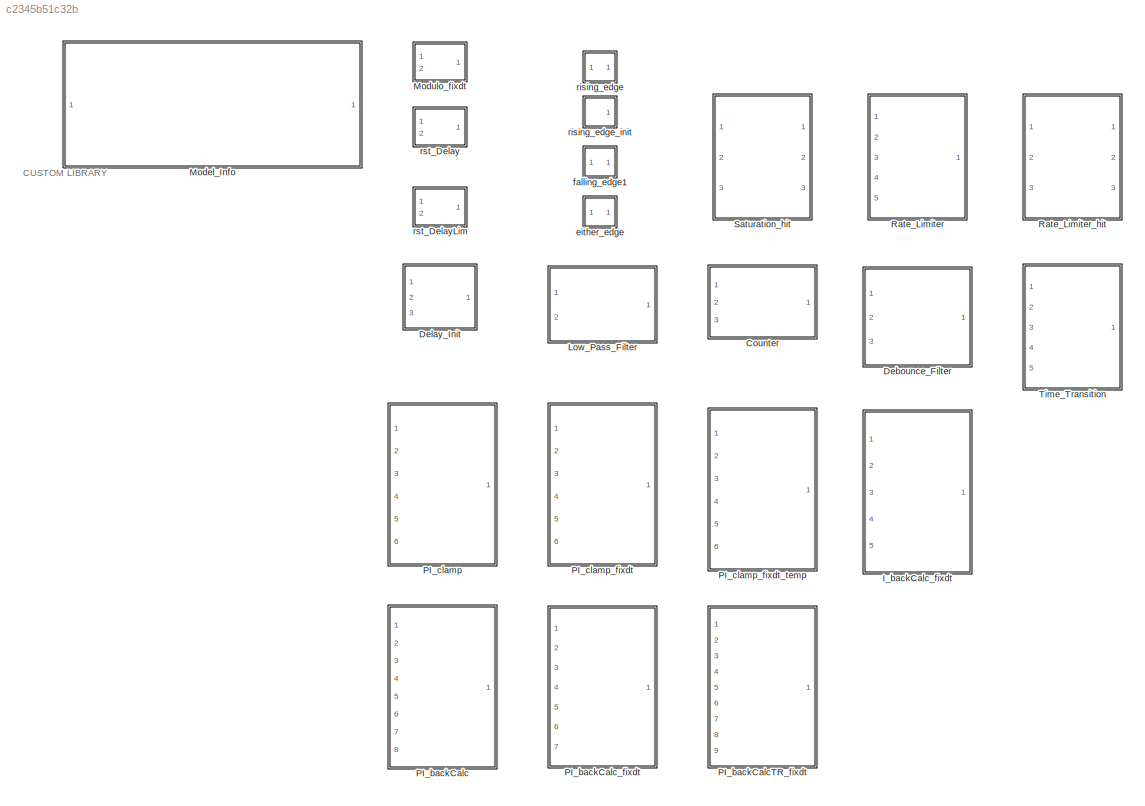
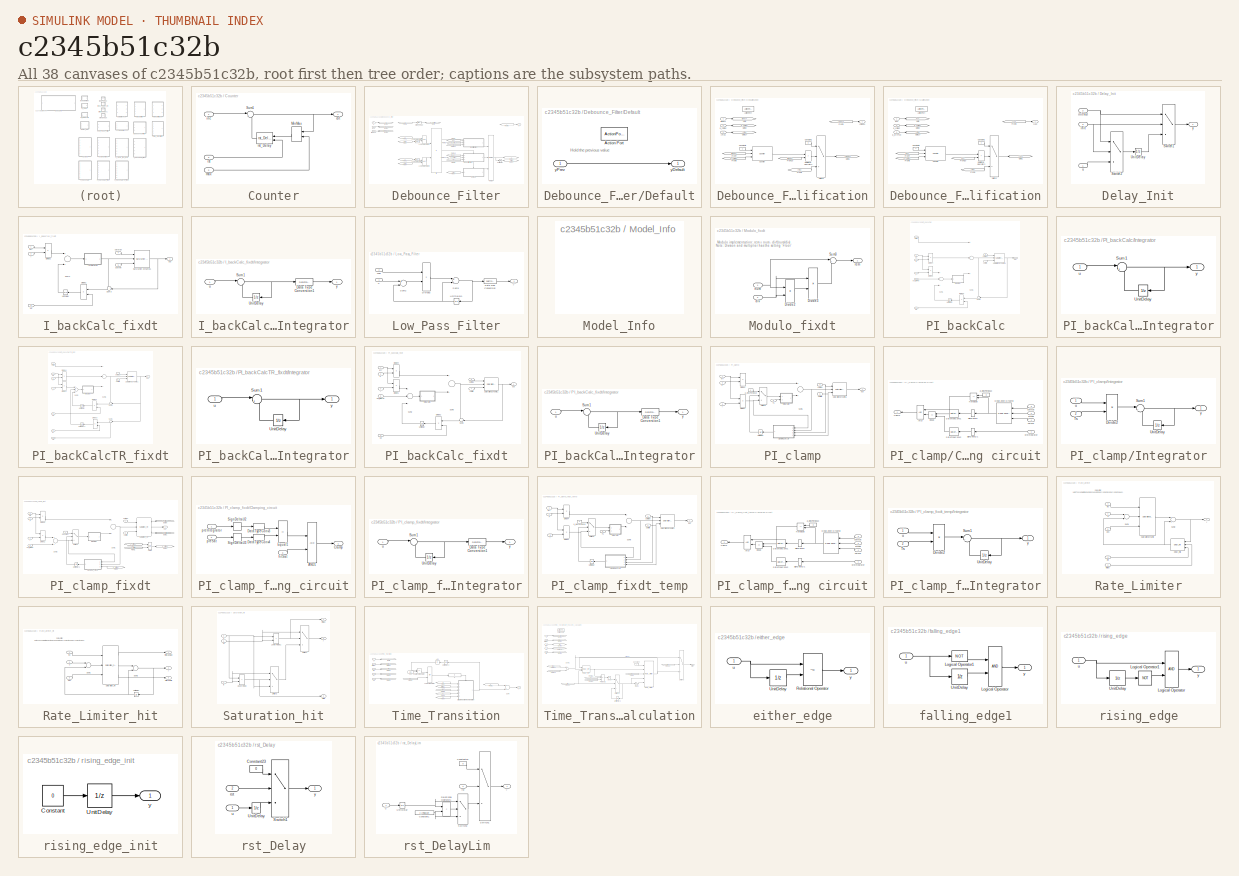
[diagram: thumbnail index - all 38 canvases of the model, root first then tree order]
MODEL slx_c2345b51c32b
KIND library
CONFIG AbsTol = auto
CONFIG EnableMultiTasking = off
CONFIG FixedStep = auto
CONFIG MaxStep = auto
CONFIG MinStep = auto
CONFIG RelTol = 1e-3
CONFIG SampleTimeConstraint = Unconstrained
CONFIG Solver = VariableStepAuto
CONFIG SolverName = VariableStepAuto
CONFIG StartTime = 0.0
CONFIG StopTime = 10.0
BLOCK [SubSystem] Counter
  AttributesFormatString = Ini=%<z_cntInit>
  Ports = [3, 1]
  RTWFcnNameOpts = Use subsystem name
  RTWSystemCode = Reusable function
  RequestExecContextInheritance = off
  TreatAsAtomicUnit = on
  Variant = off
BLOCK [MinMax] Counter/MinMax
  InputSameDT = off
  Inputs = 2
  Ports = [2, 1]
  SaturateOnIntegerOverflow = off
BLOCK [Sum] Counter/Sum1
  AccumDataTypeStr = Inherit: Same as first input
  IconShape = round
  Inputs = |++
  Ports = [2, 1]
  RndMeth = Simplest
  SaturateOnIntegerOverflow = off
BLOCK [Outport] Counter/cnt
  IconDisplay = Port number
BLOCK [Inport] Counter/inc
  IconDisplay = Port number
BLOCK [Inport] Counter/max
  IconDisplay = Port number
  Port = 2
BLOCK [Inport] Counter/rst
  IconDisplay = Port number
  Port = 3
BLOCK [Reference] Counter/rst_Delay  REF=BLDC_controller_Lib/rst_Delay
  AttributesFormatString = Ini=%<InitVal>
  Ports = [2, 1]
  SourceBlock = BLDC_controller_Lib/rst_Delay
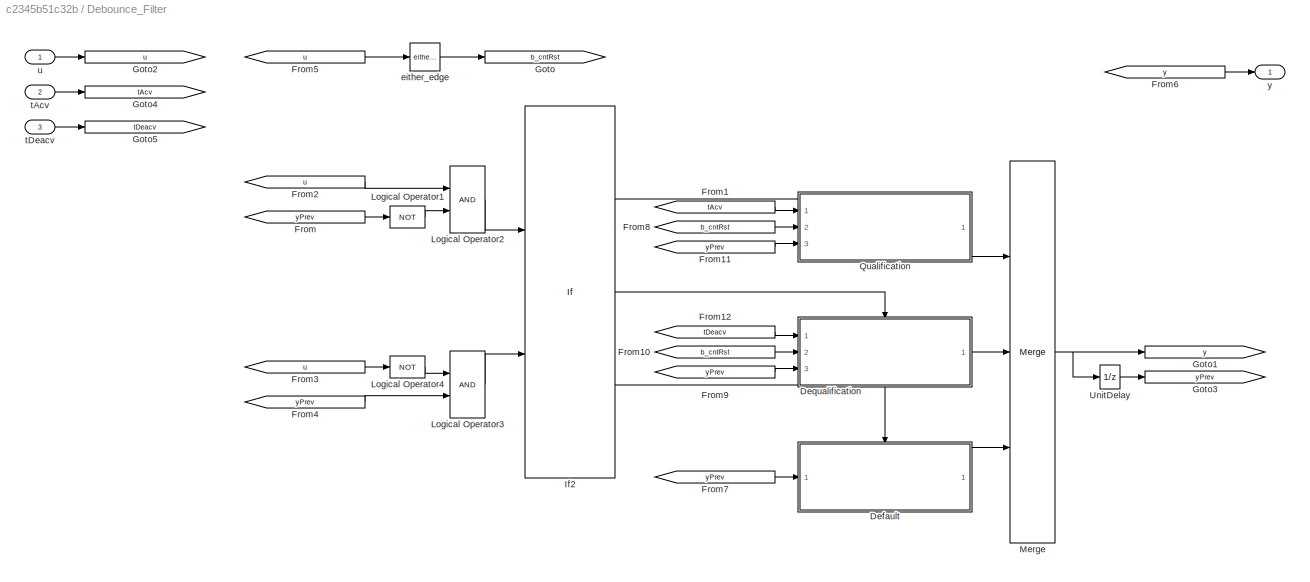
BLOCK [SubSystem] Debounce_Filter
  Ports = [3, 1]
  RTWFcnNameOpts = Use subsystem name
  RTWSystemCode = Reusable function
  RequestExecContextInheritance = off
  TreatAsAtomicUnit = on
  Variant = off
BLOCK [SubSystem] Debounce_Filter/Default
  Ports = [1, 1, 0, 0, 0, 0, 0, 1]
  RequestExecContextInheritance = off
  Variant = off
BLOCK [ActionPort] Debounce_Filter/Default/Action Port
BLOCK [Outport] Debounce_Filter/Default/yDefault
  IconDisplay = Port number
BLOCK [Inport] Debounce_Filter/Default/yPrev
  IconDisplay = Port number
BLOCK [SubSystem] Debounce_Filter/Dequalification
  Ports = [3, 1, 0, 0, 0, 0, 0, 1]
  RequestExecContextInheritance = off
  Variant = off
BLOCK [ActionPort] Debounce_Filter/Dequalification/Action Port
BLOCK [Constant] Debounce_Filter/Dequalification/Constant1
  OutDataTypeStr = Inherit: Inherit via back propagation
  Value = 0
BLOCK [Constant] Debounce_Filter/Dequalification/Constant6
  OutDataTypeStr = uint16
BLOCK [Reference] Debounce_Filter/Dequalification/Counter  REF=BLDC_controller_Lib/Counter
  Ports = [3, 1]
  SourceBlock = BLDC_controller_Lib/Counter
BLOCK [From] Debounce_Filter/Dequalification/From1
  GotoTag = yPrev
BLOCK [From] Debounce_Filter/Dequalification/From10
  GotoTag = tDeacv
BLOCK [From] Debounce_Filter/Dequalification/From2
  GotoTag = yDeacv
BLOCK [From] Debounce_Filter/Dequalification/From7
  GotoTag = tDeacv
BLOCK [From] Debounce_Filter/Dequalification/From8
  GotoTag = b_cntRst
BLOCK [Goto] Debounce_Filter/Dequalification/Goto
  GotoTag = tDeacv
BLOCK [Goto] Debounce_Filter/Dequalification/Goto1
  GotoTag = yDeacv
BLOCK [Goto] Debounce_Filter/Dequalification/Goto17
  GotoTag = yPrev
BLOCK [Goto] Debounce_Filter/Dequalification/Goto2
  GotoTag = b_cntRst
BLOCK [RelationalOperator] Debounce_Filter/Dequalification/Relational Operator2
  InputSameDT = off
  Operator = >
  OutDataTypeStr = boolean
  Ports = [2, 1]
  RndMeth = Simplest
BLOCK [Switch] Debounce_Filter/Dequalification/Switch2
  Criteria = u2 ~= 0
  InputSameDT = off
  OutDataTypeStr = Inherit: Inherit via back propagation
  RndMeth = Zero
  SaturateOnIntegerOverflow = off
BLOCK [Inport] Debounce_Filter/Dequalification/b_cntRst
  IconDisplay = Port number
  Port = 2
BLOCK [Inport] Debounce_Filter/Dequalification/tDeacv
  IconDisplay = Port number
BLOCK [Outport] Debounce_Filter/Dequalification/yDeacv
  IconDisplay = Port number
BLOCK [Inport] Debounce_Filter/Dequalification/yPrev
  IconDisplay = Port number
  Port = 3
BLOCK [From] Debounce_Filter/From
  GotoTag = yPrev
BLOCK [From] Debounce_Filter/From1
  GotoTag = tAcv
BLOCK [From] Debounce_Filter/From10
  GotoTag = b_cntRst
BLOCK [From] Debounce_Filter/From11
  GotoTag = yPrev
BLOCK [From] Debounce_Filter/From12
  GotoTag = tDeacv
BLOCK [From] Debounce_Filter/From2
  GotoTag = u
BLOCK [From] Debounce_Filter/From3
  GotoTag = u
BLOCK [From] Debounce_Filter/From4
  GotoTag = yPrev
BLOCK [From] Debounce_Filter/From5
  GotoTag = u
BLOCK [From] Debounce_Filter/From6
  GotoTag = y
BLOCK [From] Debounce_Filter/From7
  GotoTag = yPrev
BLOCK [From] Debounce_Filter/From8
  GotoTag = b_cntRst
BLOCK [From] Debounce_Filter/From9
  GotoTag = yPrev
BLOCK [Goto] Debounce_Filter/Goto
  GotoTag = b_cntRst
BLOCK [Goto] Debounce_Filter/Goto1
  GotoTag = y
BLOCK [Goto] Debounce_Filter/Goto2
  GotoTag = u
BLOCK [Goto] Debounce_Filter/Goto3
  GotoTag = yPrev
BLOCK [Goto] Debounce_Filter/Goto4
  GotoTag = tAcv
BLOCK [Goto] Debounce_Filter/Goto5
  GotoTag = tDeacv
BLOCK [If] Debounce_Filter/If2
  ElseIfExpressions = u2 ~=0
  IfExpression = u1 ~= 0
  NumInputs = 2
  Ports = [2, 3]
BLOCK [Logic] Debounce_Filter/Logical Operator1
  AllPortsSameDT = off
  Operator = NOT
  OutDataTypeStr = boolean
  Ports = [1, 1]
BLOCK [Logic] Debounce_Filter/Logical Operator2
  AllPortsSameDT = off
  OutDataTypeStr = boolean
  Ports = [2, 1]
BLOCK [Logic] Debounce_Filter/Logical Operator3
  AllPortsSameDT = off
  OutDataTypeStr = boolean
  Ports = [2, 1]
BLOCK [Logic] Debounce_Filter/Logical Operator4
  AllPortsSameDT = off
  Operator = NOT
  OutDataTypeStr = boolean
  Ports = [1, 1]
BLOCK [Merge] Debounce_Filter/Merge
  Inputs = 3
  Ports = [3, 1]
BLOCK [SubSystem] Debounce_Filter/Qualification
  Ports = [3, 1, 0, 0, 0, 0, 0, 1]
  RequestExecContextInheritance = off
  Variant = off
BLOCK [ActionPort] Debounce_Filter/Qualification/Action Port
BLOCK [Constant] Debounce_Filter/Qualification/Constant1
  OutDataTypeStr = Inherit: Inherit via back propagation
BLOCK [Constant] Debounce_Filter/Qualification/Constant6
  OutDataTypeStr = uint16
BLOCK [Reference] Debounce_Filter/Qualification/Counter  REF=BLDC_controller_Lib/Counter
  Ports = [3, 1]
  SourceBlock = BLDC_controller_Lib/Counter
BLOCK [From] Debounce_Filter/Qualification/From1
  GotoTag = yPrev
BLOCK [From] Debounce_Filter/Qualification/From10
  GotoTag = tAcv
BLOCK [From] Debounce_Filter/Qualification/From2
  GotoTag = yAcv
BLOCK [From] Debounce_Filter/Qualification/From7
  GotoTag = tAcv
BLOCK [From] Debounce_Filter/Qualification/From8
  GotoTag = b_cntRst
BLOCK [Goto] Debounce_Filter/Qualification/Goto
  GotoTag = tAcv
BLOCK [Goto] Debounce_Filter/Qualification/Goto1
  GotoTag = yAcv
BLOCK [Goto] Debounce_Filter/Qualification/Goto17
  GotoTag = yPrev
BLOCK [Goto] Debounce_Filter/Qualification/Goto2
  GotoTag = b_cntRst
BLOCK [RelationalOperator] Debounce_Filter/Qualification/Relational Operator2
  InputSameDT = off
  Operator = >
  OutDataTypeStr = boolean
  Ports = [2, 1]
  RndMeth = Simplest
BLOCK [Switch] Debounce_Filter/Qualification/Switch2
  Criteria = u2 ~= 0
  InputSameDT = off
  OutDataTypeStr = Inherit: Inherit via back propagation
  RndMeth = Zero
  SaturateOnIntegerOverflow = off
BLOCK [Inport] Debounce_Filter/Qualification/b_cntRst
  IconDisplay = Port number
  Port = 2
BLOCK [Inport] Debounce_Filter/Qualification/b_errPrev
  IconDisplay = Port number
  Port = 3
BLOCK [Inport] Debounce_Filter/Qualification/tAcv
  IconDisplay = Port number
BLOCK [Outport] Debounce_Filter/Qualification/yAcv
  IconDisplay = Port number
BLOCK [UnitDelay] Debounce_Filter/UnitDelay
  AttributesFormatString = Ini=%<X0>
  SampleTime = -1
BLOCK [Reference] Debounce_Filter/either_edge  REF=BLDC_controller_Lib/either_edge
  Ports = [1, 1]
  SourceBlock = BLDC_controller_Lib/either_edge
  SourceType = Either edge detection
  UserDataPersistent = on
BLOCK [Inport] Debounce_Filter/tAcv
  IconDisplay = Port number
  Port = 2
BLOCK [Inport] Debounce_Filter/tDeacv
  IconDisplay = Port number
  Port = 3
BLOCK [Inport] Debounce_Filter/u
  IconDisplay = Port number
BLOCK [Outport] Debounce_Filter/y
  IconDisplay = Port number
BLOCK [SubSystem] Delay_Init
  AttributesFormatString = Ini=%<initVal>
  Ports = [3, 1]
  RequestExecContextInheritance = off
  Variant = off
BLOCK [Switch] Delay_Init/Switch1
  Criteria = u2 ~= 0
  OutDataTypeStr = Inherit: Inherit via back propagation
  RndMeth = Simplest
  SaturateOnIntegerOverflow = off
BLOCK [Switch] Delay_Init/Switch2
  Criteria = u2 ~= 0
  OutDataTypeStr = Inherit: Inherit via back propagation
  RndMeth = Simplest
  SaturateOnIntegerOverflow = off
BLOCK [UnitDelay] Delay_Init/UnitDelay
  AttributesFormatString = Ini=%<X0>
  InitialCondition = initVal
  SampleTime = -1
BLOCK [Inport] Delay_Init/init
  IconDisplay = Port number
  Port = 3
BLOCK [Inport] Delay_Init/initVal
  IconDisplay = Port number
  Port = 2
BLOCK [Inport] Delay_Init/u
  IconDisplay = Port number
BLOCK [Outport] Delay_Init/y
  IconDisplay = Port number
BLOCK [SubSystem] I_backCalc_fixdt
  AttributesFormatString = Ini=%<yInit>
  Ports = [5, 1]
  RTWFcnNameOpts = Use subsystem name
  RTWSystemCode = Reusable function
  RequestExecContextInheritance = off
  TreatAsAtomicUnit = on
  Variant = off
BLOCK [Product] I_backCalc_fixdt/Divide1
  InputSameDT = off
  Inputs = **
  OutDataTypeStr = Inherit: Inherit via internal rule
  Ports = [2, 1]
  RndMeth = Simplest
  SaturateOnIntegerOverflow = off
BLOCK [Product] I_backCalc_fixdt/Divide2
  InputSameDT = off
  Inputs = **
  OutDataTypeStr = Inherit: Inherit via internal rule
  Ports = [2, 1]
  RndMeth = Simplest
  SaturateOnIntegerOverflow = off
BLOCK [Inport] I_backCalc_fixdt/I
  IconDisplay = Port number
  Port = 2
BLOCK [SubSystem] I_backCalc_fixdt/Integrator
  Ports = [1, 1]
  RequestExecContextInheritance = off
  Variant = off
BLOCK [DataTypeConversion] I_backCalc_fixdt/Integrator/Data Type Conversion1
  OutDataTypeStr = fixdt(1,16,4)
  RndMeth = Floor
  SaturateOnIntegerOverflow = off
BLOCK [Sum] I_backCalc_fixdt/Integrator/Sum1
  AccumDataTypeStr = Inherit: Same as first input
  IconShape = round
  InputSameDT = off
  Inputs = |++
  Ports = [2, 1]
  RndMeth = Simplest
  SaturateOnIntegerOverflow = off
BLOCK [UnitDelay] I_backCalc_fixdt/Integrator/UnitDelay
  AttributesFormatString = Ini=%<X0>
  InitialCondition = yInit
  SampleTime = -1
BLOCK [Inport] I_backCalc_fixdt/Integrator/u
  IconDisplay = Port number
BLOCK [Outport] I_backCalc_fixdt/Integrator/y
  IconDisplay = Port number
BLOCK [Inport] I_backCalc_fixdt/Kb
  IconDisplay = Port number
  Port = 3
BLOCK [Reference] I_backCalc_fixdt/Saturation Dynamic1  REF=simulink/Discontinuities/Saturation
Dynamic
  Ports = [3, 1]
  SourceBlock = simulink/Discontinuities/Saturation\nDynamic
  SourceProductBaseCode = SL
  SourceProductName = Simulink
  SourceType = Saturation Dynamic
BLOCK [Sum] I_backCalc_fixdt/Sum2
  InputSameDT = off
  OutDataTypeStr = Inherit: Inherit via internal rule
  Ports = [2, 1]
  RndMeth = Simplest
BLOCK [Sum] I_backCalc_fixdt/Sum3
  IconShape = round
  InputSameDT = off
  Inputs = -+|
  OutDataTypeStr = Inherit: Inherit via internal rule
  Ports = [2, 1]
  RndMeth = Simplest
  SaturateOnIntegerOverflow = off
BLOCK [UnitDelay] I_backCalc_fixdt/UnitDelay
  AttributesFormatString = Ini=%<X0>
  SampleTime = -1
BLOCK [Inport] I_backCalc_fixdt/err
  IconDisplay = Port number
BLOCK [Outport] I_backCalc_fixdt/out
  IconDisplay = Port number
BLOCK [Inport] I_backCalc_fixdt/satMax
  IconDisplay = Port number
  Port = 4
BLOCK [Inport] I_backCalc_fixdt/satMin
  IconDisplay = Port number
  Port = 5
BLOCK [SubSystem] Low_Pass_Filter
  Ports = [2, 1]
  RTWFcnNameOpts = Use subsystem name
  RTWSystemCode = Reusable function
  RequestExecContextInheritance = off
  TreatAsAtomicUnit = on
  Variant = off
BLOCK [DataTypeConversion] Low_Pass_Filter/Data Type Conversion
  OutDataTypeStr = fixdt(1,16,4)
  RndMeth = Floor
  SaturateOnIntegerOverflow = off
BLOCK [Product] Low_Pass_Filter/Divide3
  InputSameDT = off
  Inputs = **
  OutDataTypeStr = Inherit: Inherit via internal rule
  Ports = [2, 1]
  RndMeth = Simplest
  SaturateOnIntegerOverflow = off
BLOCK [Sum] Low_Pass_Filter/Sum2
  AccumDataTypeStr = Inherit: Same as first input
  InputSameDT = off
  Inputs = +-
  Ports = [2, 1]
  RndMeth = Simplest
BLOCK [Sum] Low_Pass_Filter/Sum3
  AccumDataTypeStr = Inherit: Same as first input
  InputSameDT = off
  Ports = [2, 1]
  RndMeth = Simplest
  SaturateOnIntegerOverflow = off
BLOCK [UnitDelay] Low_Pass_Filter/UnitDelay1
  InputProcessing = Elements as channels (sample based)
  SampleTime = -1
BLOCK [Inport] Low_Pass_Filter/coef
  IconDisplay = Port number
  Port = 2
BLOCK [Inport] Low_Pass_Filter/u
  IconDisplay = Port number
BLOCK [Outport] Low_Pass_Filter/y
  IconDisplay = Port number
BLOCK [SubSystem] Model_Info
  Ports = []
  RequestExecContextInheritance = off
  Variant = off
BLOCK [SubSystem] Modulo_fixdt
  Ports = [2, 1]
  RequestExecContextInheritance = off
  Variant = off
BLOCK [Product] Modulo_fixdt/Divide2
  InputSameDT = off
  Inputs = */
  OutDataTypeStr = fixdt(1,16,0)
  Ports = [2, 1]
  RndMeth = Floor
  SaturateOnIntegerOverflow = off
BLOCK [Product] Modulo_fixdt/Divide3
  InputSameDT = off
  Inputs = **
  Ports = [2, 1]
  RndMeth = Floor
  SaturateOnIntegerOverflow = off
BLOCK [Sum] Modulo_fixdt/Sum3
  AccumDataTypeStr = Inherit: Same as first input
  IconShape = round
  InputSameDT = off
  Inputs = |+-
  Ports = [2, 1]
  RndMeth = Simplest
  SaturateOnIntegerOverflow = off
BLOCK [Inport] Modulo_fixdt/div
  IconDisplay = Port number
  Port = 2
BLOCK [Inport] Modulo_fixdt/num
  IconDisplay = Port number
BLOCK [Outport] Modulo_fixdt/rem
  IconDisplay = Port number
BLOCK [SubSystem] PI_backCalc
  Ports = [8, 1]
  RTWFcnNameOpts = Use subsystem name
  RTWSystemCode = Reusable function
  RequestExecContextInheritance = off
  TreatAsAtomicUnit = on
  Variant = off
BLOCK [Product] PI_backCalc/Divide1
  InputSameDT = off
  Inputs = **
  OutDataTypeStr = Inherit: Inherit via internal rule
  Ports = [2, 1]
  RndMeth = Simplest
  SaturateOnIntegerOverflow = off
BLOCK [Product] PI_backCalc/Divide2
  InputSameDT = off
  Inputs = **
  OutDataTypeStr = Inherit: Inherit via internal rule
  Ports = [2, 1]
  RndMeth = Simplest
  SaturateOnIntegerOverflow = off
BLOCK [Product] PI_backCalc/Divide4
  InputSameDT = off
  Inputs = **
  OutDataTypeStr = Inherit: Inherit via internal rule
  Ports = [2, 1]
  RndMeth = Simplest
  SaturateOnIntegerOverflow = off
BLOCK [Inport] PI_backCalc/Ffwd
  IconDisplay = Port number
BLOCK [Inport] PI_backCalc/I
  IconDisplay = Port number
  Port = 4
BLOCK [SubSystem] PI_backCalc/Integrator
  Ports = [1, 1]
  RequestExecContextInheritance = off
  Variant = off
BLOCK [Sum] PI_backCalc/Integrator/Sum1
  AccumDataTypeStr = Inherit: Same as first input
  IconShape = round
  InputSameDT = off
  Inputs = |++
  Ports = [2, 1]
  RndMeth = Simplest
  SaturateOnIntegerOverflow = off
BLOCK [UnitDelay] PI_backCalc/Integrator/UnitDelay
  AttributesFormatString = Ini=%<X0>
  SampleTime = -1
BLOCK [Inport] PI_backCalc/Integrator/u
  IconDisplay = Port number
BLOCK [Outport] PI_backCalc/Integrator/y
  IconDisplay = Port number
BLOCK [Inport] PI_backCalc/Kb
  IconDisplay = Port number
  Port = 5
BLOCK [Inport] PI_backCalc/P
  IconDisplay = Port number
  Port = 3
BLOCK [Reference] PI_backCalc/Saturation Dynamic1  REF=simulink/Discontinuities/Saturation
Dynamic
  Ports = [3, 1]
  SourceBlock = simulink/Discontinuities/Saturation\nDynamic
  SourceProductBaseCode = SL
  SourceProductName = Simulink
  SourceType = Saturation Dynamic
BLOCK [Sum] PI_backCalc/Sum1
  InputSameDT = off
  Inputs = +++
  OutDataTypeStr = Inherit: Inherit via back propagation
  Ports = [3, 1]
  RndMeth = Simplest
BLOCK [Sum] PI_backCalc/Sum3
  IconShape = round
  InputSameDT = off
  Inputs = -+|
  OutDataTypeStr = Inherit: Inherit via back propagation
  Ports = [2, 1]
  RndMeth = Simplest
BLOCK [Sum] PI_backCalc/Sum6
  InputSameDT = off
  Inputs = +++
  OutDataTypeStr = single
  Ports = [3, 1]
  RndMeth = Simplest
BLOCK [UnitDelay] PI_backCalc/UnitDelay
  AttributesFormatString = Ini=%<X0>
  SampleTime = -1
BLOCK [Inport] PI_backCalc/err
  IconDisplay = Port number
  Port = 2
BLOCK [Inport] PI_backCalc/ext_limProt
  IconDisplay = Port number
  Port = 8
BLOCK [Outport] PI_backCalc/out
  IconDisplay = Port number
BLOCK [Inport] PI_backCalc/satMax
  IconDisplay = Port number
  Port = 6
BLOCK [Inport] PI_backCalc/satMin
  IconDisplay = Port number
  Port = 7
BLOCK [SubSystem] PI_backCalcTR_fixdt
  Ports = [9, 1]
  RTWFcnNameOpts = Use subsystem name
  RTWSystemCode = Reusable function
  RequestExecContextInheritance = off
  TreatAsAtomicUnit = on
  Variant = off
BLOCK [Product] PI_backCalcTR_fixdt/Divide1
  InputSameDT = off
  Inputs = **
  OutDataTypeStr = Inherit: Inherit via internal rule
  Ports = [2, 1]
  RndMeth = Simplest
  SaturateOnIntegerOverflow = off
BLOCK [Product] PI_backCalcTR_fixdt/Divide2
  InputSameDT = off
  Inputs = **
  OutDataTypeStr = Inherit: Inherit via internal rule
  Ports = [2, 1]
  RndMeth = Simplest
  SaturateOnIntegerOverflow = off
BLOCK [Product] PI_backCalcTR_fixdt/Divide3
  InputSameDT = off
  Inputs = **
  OutDataTypeStr = Inherit: Inherit via internal rule
  Ports = [2, 1]
  RndMeth = Simplest
  SaturateOnIntegerOverflow = off
BLOCK [Product] PI_backCalcTR_fixdt/Divide4
  InputSameDT = off
  Inputs = **
  OutDataTypeStr = Inherit: Inherit via internal rule
  Ports = [2, 1]
  RndMeth = Simplest
  SaturateOnIntegerOverflow = off
BLOCK [Inport] PI_backCalcTR_fixdt/Ffwd
  IconDisplay = Port number
BLOCK [Inport] PI_backCalcTR_fixdt/I
  IconDisplay = Port number
  Port = 4
BLOCK [SubSystem] PI_backCalcTR_fixdt/Integrator
  Ports = [1, 1]
  RequestExecContextInheritance = off
  Variant = off
BLOCK [Sum] PI_backCalcTR_fixdt/Integrator/Sum1
  AccumDataTypeStr = Inherit: Same as first input
  IconShape = round
  InputSameDT = off
  Inputs = |++
  Ports = [2, 1]
  RndMeth = Simplest
  SaturateOnIntegerOverflow = off
BLOCK [UnitDelay] PI_backCalcTR_fixdt/Integrator/UnitDelay
  AttributesFormatString = Ini=%<X0>
  SampleTime = -1
BLOCK [Inport] PI_backCalcTR_fixdt/Integrator/u
  IconDisplay = Port number
BLOCK [Outport] PI_backCalcTR_fixdt/Integrator/y
  IconDisplay = Port number
BLOCK [Inport] PI_backCalcTR_fixdt/Kb
  IconDisplay = Port number
  Port = 5
BLOCK [Inport] PI_backCalcTR_fixdt/Kt
  IconDisplay = Port number
  Port = 6
BLOCK [Inport] PI_backCalcTR_fixdt/P
  IconDisplay = Port number
  Port = 3
BLOCK [Reference] PI_backCalcTR_fixdt/Saturation Dynamic1  REF=simulink/Discontinuities/Saturation
Dynamic
  Ports = [3, 1]
  SourceBlock = simulink/Discontinuities/Saturation\nDynamic
  SourceProductBaseCode = SL
  SourceProductName = Simulink
  SourceType = Saturation Dynamic
BLOCK [Sum] PI_backCalcTR_fixdt/Sum1
  IconShape = round
  InputSameDT = off
  Inputs = |-+
  OutDataTypeStr = Inherit: Inherit via internal rule
  Ports = [2, 1]
  RndMeth = Simplest
BLOCK [Sum] PI_backCalcTR_fixdt/Sum2
  InputSameDT = off
  Inputs = +++
  OutDataTypeStr = Inherit: Inherit via internal rule
  Ports = [3, 1]
  RndMeth = Simplest
BLOCK [Sum] PI_backCalcTR_fixdt/Sum3
  IconShape = round
  InputSameDT = off
  Inputs = -+|
  OutDataTypeStr = Inherit: Inherit via internal rule
  Ports = [2, 1]
  RndMeth = Simplest
BLOCK [Sum] PI_backCalcTR_fixdt/Sum6
  InputSameDT = off
  Inputs = +++
  OutDataTypeStr = fixdt(1,16,4)
  Ports = [3, 1]
  RndMeth = Simplest
BLOCK [Inport] PI_backCalcTR_fixdt/TR
  IconDisplay = Port number
  Port = 9
BLOCK [UnitDelay] PI_backCalcTR_fixdt/UnitDelay
  AttributesFormatString = Ini=%<X0>
  SampleTime = -1
BLOCK [UnitDelay] PI_backCalcTR_fixdt/UnitDelay1
  AttributesFormatString = Ini=%<X0>
  SampleTime = -1
BLOCK [Inport] PI_backCalcTR_fixdt/err
  IconDisplay = Port number
  Port = 2
BLOCK [Outport] PI_backCalcTR_fixdt/out
  IconDisplay = Port number
BLOCK [Inport] PI_backCalcTR_fixdt/satMax
  IconDisplay = Port number
  Port = 7
BLOCK [Inport] PI_backCalcTR_fixdt/satMin
  IconDisplay = Port number
  Port = 8
BLOCK [SubSystem] PI_backCalc_fixdt
  Ports = [7, 1]
  RTWFcnNameOpts = Use subsystem name
  RTWSystemCode = Reusable function
  RequestExecContextInheritance = off
  TreatAsAtomicUnit = on
  Variant = off
BLOCK [Product] PI_backCalc_fixdt/Divide1
  InputSameDT = off
  Inputs = **
  OutDataTypeStr = Inherit: Inherit via internal rule
  Ports = [2, 1]
  RndMeth = Simplest
BLOCK [Product] PI_backCalc_fixdt/Divide2
  InputSameDT = off
  Inputs = **
  OutDataTypeStr = Inherit: Inherit via internal rule
  Ports = [2, 1]
  RndMeth = Simplest
  SaturateOnIntegerOverflow = off
BLOCK [Product] PI_backCalc_fixdt/Divide4
  InputSameDT = off
  Inputs = **
  OutDataTypeStr = fixdt(1,16,5)
  Ports = [2, 1]
  RndMeth = Simplest
BLOCK [Inport] PI_backCalc_fixdt/I
  IconDisplay = Port number
  Port = 3
BLOCK [SubSystem] PI_backCalc_fixdt/Integrator
  Ports = [1, 1]
  RequestExecContextInheritance = off
  Variant = off
BLOCK [DataTypeConversion] PI_backCalc_fixdt/Integrator/Data Type Conversion1
  OutDataTypeStr = fixdt(1,16,4)
  RndMeth = Floor
  SaturateOnIntegerOverflow = off
BLOCK [Sum] PI_backCalc_fixdt/Integrator/Sum1
  AccumDataTypeStr = Inherit: Same as first input
  IconShape = round
  InputSameDT = off
  Inputs = |++
  Ports = [2, 1]
  RndMeth = Simplest
  SaturateOnIntegerOverflow = off
BLOCK [UnitDelay] PI_backCalc_fixdt/Integrator/UnitDelay
  AttributesFormatString = Ini=%<X0>
  SampleTime = -1
BLOCK [Inport] PI_backCalc_fixdt/Integrator/u
  IconDisplay = Port number
BLOCK [Outport] PI_backCalc_fixdt/Integrator/y
  IconDisplay = Port number
BLOCK [Inport] PI_backCalc_fixdt/Kb
  IconDisplay = Port number
  Port = 4
BLOCK [Inport] PI_backCalc_fixdt/P
  IconDisplay = Port number
  Port = 2
BLOCK [Reference] PI_backCalc_fixdt/Saturation Dynamic1  REF=simulink/Discontinuities/Saturation
Dynamic
  Ports = [3, 1]
  SourceBlock = simulink/Discontinuities/Saturation\nDynamic
  SourceProductBaseCode = SL
  SourceProductName = Simulink
  SourceType = Saturation Dynamic
BLOCK [Sum] PI_backCalc_fixdt/Sum2
  InputSameDT = off
  Inputs = +++
  OutDataTypeStr = Inherit: Inherit via internal rule
  Ports = [3, 1]
  RndMeth = Simplest
BLOCK [Sum] PI_backCalc_fixdt/Sum3
  IconShape = round
  InputSameDT = off
  Inputs = -+|
  OutDataTypeStr = Inherit: Inherit via internal rule
  Ports = [2, 1]
  RndMeth = Simplest
  SaturateOnIntegerOverflow = off
BLOCK [Sum] PI_backCalc_fixdt/Sum6
  InputSameDT = off
  OutDataTypeStr = fixdt(1,16,4)
  Ports = [2, 1]
  RndMeth = Simplest
BLOCK [UnitDelay] PI_backCalc_fixdt/UnitDelay
  AttributesFormatString = Ini=%<X0>
  SampleTime = -1
BLOCK [Inport] PI_backCalc_fixdt/err
  IconDisplay = Port number
BLOCK [Inport] PI_backCalc_fixdt/ext_limProt
  IconDisplay = Port number
  Port = 5
BLOCK [Outport] PI_backCalc_fixdt/out
  IconDisplay = Port number
BLOCK [Inport] PI_backCalc_fixdt/satMax
  IconDisplay = Port number
  Port = 6
BLOCK [Inport] PI_backCalc_fixdt/satMin
  IconDisplay = Port number
  Port = 7
BLOCK [SubSystem] PI_clamp
  Ports = [6, 1]
  RTWFcnNameOpts = Use subsystem name
  RTWSystemCode = Reusable function
  RequestExecContextInheritance = off
  TreatAsAtomicUnit = on
  Variant = off
BLOCK [SubSystem] PI_clamp/Clamping circuit
  Ports = [4, 1]
  RequestExecContextInheritance = off
  Variant = off
BLOCK [Logic] PI_clamp/Clamping circuit/AND
  DisableCoverage = on
  Ports = [2, 1]
BLOCK [Outport] PI_clamp/Clamping circuit/Clamp
  DisableCoverage = on
  IconDisplay = Port number
BLOCK [DataTypeConversion] PI_clamp/Clamping circuit/DataTypeConv1
  DisableCoverage = on
  LockScale = on
  OutDataTypeStr = int8
  SaturateOnIntegerOverflow = off
BLOCK [DataTypeConversion] PI_clamp/Clamping circuit/DataTypeConv2
  DisableCoverage = on
  LockScale = on
  OutDataTypeStr = int8
  SaturateOnIntegerOverflow = off
BLOCK [Reference] PI_clamp/Clamping circuit/Dead Zone Dynamic  REF=simulink/Discontinuities/Dead Zone
Dynamic
  Ports = [3, 1]
  SourceBlock = simulink/Discontinuities/Dead Zone\nDynamic
  SourceProductBaseCode = SL
  SourceProductName = Simulink
  SourceType = Dead Zone Dynamic
BLOCK [RelationalOperator] PI_clamp/Clamping circuit/Equal
  DisableCoverage = on
  Operator = ==
  Ports = [2, 1]
  RndMeth = Zero
BLOCK [RelationalOperator] PI_clamp/Clamping circuit/NotEqual
  DisableCoverage = on
  Operator = ~=
  Ports = [2, 1]
BLOCK [Signum] PI_clamp/Clamping circuit/SignDeltaU
  DisableCoverage = on
BLOCK [Signum] PI_clamp/Clamping circuit/SignDeltaU1
  DisableCoverage = on
BLOCK [Constant] PI_clamp/Clamping circuit/a_elecPeriod10
  OutDataTypeStr = Inherit: Inherit via back propagation
  Value = 0
BLOCK [Inport] PI_clamp/Clamping circuit/preIntegrator
  DisableCoverage = on
  IconDisplay = Port number
BLOCK [Inport] PI_clamp/Clamping circuit/preSat
  DisableCoverage = on
  IconDisplay = Port number
  Port = 2
BLOCK [Inport] PI_clamp/Clamping circuit/satMax
  DisableCoverage = on
  IconDisplay = Port number
  Port = 3
BLOCK [Inport] PI_clamp/Clamping circuit/satMin
  DisableCoverage = on
  IconDisplay = Port number
  Port = 4
BLOCK [Product] PI_clamp/Divide1
  InputSameDT = off
  Inputs = **
  OutDataTypeStr = Inherit: Inherit via internal rule
  Ports = [2, 1]
  RndMeth = Simplest
  SaturateOnIntegerOverflow = off
BLOCK [Product] PI_clamp/Divide4
  InputSameDT = off
  Inputs = **
  OutDataTypeStr = Inherit: Inherit via internal rule
  Ports = [2, 1]
  RndMeth = Simplest
  SaturateOnIntegerOverflow = off
BLOCK [Inport] PI_clamp/I
  IconDisplay = Port number
  Port = 3
BLOCK [SubSystem] PI_clamp/Integrator
  Ports = [2, 1]
  RequestExecContextInheritance = off
  Variant = off
BLOCK [Product] PI_clamp/Integrator/Divide2
  InputSameDT = off
  Inputs = **
  OutDataTypeStr = Inherit: Inherit via back propagation
  Ports = [2, 1]
  RndMeth = Simplest
  SaturateOnIntegerOverflow = off
BLOCK [Sum] PI_clamp/Integrator/Sum1
  AccumDataTypeStr = Inherit: Same as first input
  IconShape = round
  InputSameDT = off
  Inputs = |++
  Ports = [2, 1]
  RndMeth = Simplest
  SaturateOnIntegerOverflow = off
BLOCK [Inport] PI_clamp/Integrator/Ts
  IconDisplay = Port number
  Port = 2
BLOCK [UnitDelay] PI_clamp/Integrator/UnitDelay
  AttributesFormatString = Ini=%<X0>
  SampleTime = -1
BLOCK [Inport] PI_clamp/Integrator/u
  IconDisplay = Port number
BLOCK [Outport] PI_clamp/Integrator/y
  IconDisplay = Port number
BLOCK [Inport] PI_clamp/P
  IconDisplay = Port number
  Port = 2
BLOCK [Reference] PI_clamp/Saturation Dynamic1  REF=simulink/Discontinuities/Saturation
Dynamic
  Ports = [3, 1]
  SourceBlock = simulink/Discontinuities/Saturation\nDynamic
  SourceProductBaseCode = SL
  SourceProductName = Simulink
  SourceType = Saturation Dynamic
BLOCK [Sum] PI_clamp/Sum6
  InputSameDT = off
  OutDataTypeStr = single
  Ports = [2, 1]
  RndMeth = Simplest
BLOCK [Switch] PI_clamp/Switch3
  Criteria = u2 ~= 0
  InputSameDT = off
  OutDataTypeStr = Inherit: Inherit via back propagation
  RndMeth = Zero
  SaturateOnIntegerOverflow = off
BLOCK [Inport] PI_clamp/Ts
  IconDisplay = Port number
  Port = 6
BLOCK [UnitDelay] PI_clamp/UnitDelay
  AttributesFormatString = Ini=%<X0>
  SampleTime = -1
BLOCK [Constant] PI_clamp/a_elecPeriod10
  OutDataTypeStr = Inherit: Inherit via back propagation
  Value = 0
BLOCK [Inport] PI_clamp/err
  IconDisplay = Port number
BLOCK [Outport] PI_clamp/out
  IconDisplay = Port number
BLOCK [Inport] PI_clamp/satMax
  IconDisplay = Port number
  Port = 4
BLOCK [Inport] PI_clamp/satMin
  IconDisplay = Port number
  Port = 5
BLOCK [SubSystem] PI_clamp_fixdt
  Ports = [6, 1]
  RTWFcnNameOpts = Use subsystem name
  RTWSystemCode = Reusable function
  RequestExecContextInheritance = off
  TreatAsAtomicUnit = on
  Variant = off
BLOCK [Logic] PI_clamp_fixdt/AND1
  DisableCoverage = on
  Operator = OR
  OutDataTypeStr = boolean
  Ports = [2, 1]
BLOCK [SubSystem] PI_clamp_fixdt/Clamping_circuit
  Ports = [3, 1]
  RequestExecContextInheritance = off
  Variant = off
BLOCK [Logic] PI_clamp_fixdt/Clamping_circuit/AND1
  DisableCoverage = on
  OutDataTypeStr = boolean
  Ports = [2, 1]
BLOCK [Outport] PI_clamp_fixdt/Clamping_circuit/Clamp
  DisableCoverage = on
  IconDisplay = Port number
BLOCK [DataTypeConversion] PI_clamp_fixdt/Clamping_circuit/DataTypeConv3
  DisableCoverage = on
  LockScale = on
  OutDataTypeStr = int8
  SaturateOnIntegerOverflow = off
BLOCK [DataTypeConversion] PI_clamp_fixdt/Clamping_circuit/DataTypeConv4
  DisableCoverage = on
  LockScale = on
  OutDataTypeStr = int8
  SaturateOnIntegerOverflow = off
BLOCK [RelationalOperator] PI_clamp_fixdt/Clamping_circuit/Equal1
  DisableCoverage = on
  Operator = ==
  Ports = [2, 1]
  RndMeth = Zero
BLOCK [Signum] PI_clamp_fixdt/Clamping_circuit/SignDeltaU2
  DisableCoverage = on
BLOCK [Signum] PI_clamp_fixdt/Clamping_circuit/SignDeltaU3
  DisableCoverage = on
BLOCK [Inport] PI_clamp_fixdt/Clamping_circuit/hitSat
  DisableCoverage = on
  IconDisplay = Port number
  Port = 3
BLOCK [Inport] PI_clamp_fixdt/Clamping_circuit/preIntegrator
  DisableCoverage = on
  IconDisplay = Port number
BLOCK [Inport] PI_clamp_fixdt/Clamping_circuit/preSat
  DisableCoverage = on
  IconDisplay = Port number
  Port = 2
BLOCK [Constant] PI_clamp_fixdt/Constant
  OutDataTypeStr = Inherit: Inherit via back propagation
  Value = 0
BLOCK [Product] PI_clamp_fixdt/Divide2
  InputSameDT = off
  Inputs = **
  OutDataTypeStr = Inherit: Inherit via internal rule
  Ports = [2, 1]
  RndMeth = Simplest
  SaturateOnIntegerOverflow = off
BLOCK [Product] PI_clamp_fixdt/Divide5
  InputSameDT = off
  Inputs = **
  OutDataTypeStr = fixdt(1,16,5)
  Ports = [2, 1]
  RndMeth = Simplest
BLOCK [From] PI_clamp_fixdt/From
  GotoTag = b_hitMax
BLOCK [From] PI_clamp_fixdt/From1
  GotoTag = b_hitMin
BLOCK [From] PI_clamp_fixdt/From4
  GotoTag = b_hitSat
BLOCK [Goto] PI_clamp_fixdt/Goto1
  GotoTag = b_hitMin
BLOCK [Goto] PI_clamp_fixdt/Goto4
  GotoTag = b_hitSat
BLOCK [Goto] PI_clamp_fixdt/Goto6
  GotoTag = b_hitMax
BLOCK [Inport] PI_clamp_fixdt/I
  IconDisplay = Port number
  Port = 3
BLOCK [SubSystem] PI_clamp_fixdt/Integrator
  Ports = [1, 1]
  RequestExecContextInheritance = off
  Variant = off
BLOCK [DataTypeConversion] PI_clamp_fixdt/Integrator/Data Type Conversion1
  OutDataTypeStr = fixdt(1,16,4)
  RndMeth = Floor
  SaturateOnIntegerOverflow = off
BLOCK [Sum] PI_clamp_fixdt/Integrator/Sum1
  AccumDataTypeStr = Inherit: Same as first input
  IconShape = round
  InputSameDT = off
  Inputs = |++
  Ports = [2, 1]
  RndMeth = Simplest
  SaturateOnIntegerOverflow = off
BLOCK [UnitDelay] PI_clamp_fixdt/Integrator/UnitDelay
  AttributesFormatString = Ini=%<X0>
  SampleTime = -1
BLOCK [Inport] PI_clamp_fixdt/Integrator/u
  IconDisplay = Port number
BLOCK [Outport] PI_clamp_fixdt/Integrator/y
  IconDisplay = Port number
BLOCK [Inport] PI_clamp_fixdt/P
  IconDisplay = Port number
  Port = 2
BLOCK [Reference] PI_clamp_fixdt/Saturation_hit  REF=BLDC_controller_Lib/Saturation_hit
  Ports = [3, 3]
  SourceBlock = BLDC_controller_Lib/Saturation_hit
BLOCK [Sum] PI_clamp_fixdt/Sum1
  InputSameDT = off
  OutDataTypeStr = fixdt(1,16,4)
  Ports = [2, 1]
  RndMeth = Simplest
BLOCK [Sum] PI_clamp_fixdt/Sum2
  InputSameDT = off
  OutDataTypeStr = Inherit: Inherit via internal rule
  Ports = [2, 1]
  RndMeth = Simplest
BLOCK [Switch] PI_clamp_fixdt/Switch1
  Criteria = u2 ~= 0
  InputSameDT = off
  OutDataTypeStr = Inherit: Inherit via back propagation
  RndMeth = Zero
  SaturateOnIntegerOverflow = off
BLOCK [UnitDelay] PI_clamp_fixdt/UnitDelay1
  AttributesFormatString = Ini=%<X0>
  SampleTime = -1
BLOCK [Inport] PI_clamp_fixdt/err
  IconDisplay = Port number
BLOCK [Inport] PI_clamp_fixdt/ext_limProt
  IconDisplay = Port number
  Port = 6
BLOCK [Outport] PI_clamp_fixdt/out
  IconDisplay = Port number
BLOCK [Inport] PI_clamp_fixdt/satMax
  IconDisplay = Port number
  Port = 4
BLOCK [Inport] PI_clamp_fixdt/satMin
  IconDisplay = Port number
  Port = 5
BLOCK [SubSystem] PI_clamp_fixdt_temp
  Ports = [6, 1]
  RTWFcnNameOpts = Use subsystem name
  RTWSystemCode = Reusable function
  RequestExecContextInheritance = off
  TreatAsAtomicUnit = on
  Variant = off
BLOCK [SubSystem] PI_clamp_fixdt_temp/Clamping circuit
  Ports = [4, 1]
  RequestExecContextInheritance = off
  Variant = off
BLOCK [Logic] PI_clamp_fixdt_temp/Clamping circuit/AND
  DisableCoverage = on
  Ports = [2, 1]
BLOCK [Outport] PI_clamp_fixdt_temp/Clamping circuit/Clamp
  DisableCoverage = on
  IconDisplay = Port number
BLOCK [DataTypeConversion] PI_clamp_fixdt_temp/Clamping circuit/DataTypeConv1
  DisableCoverage = on
  LockScale = on
  OutDataTypeStr = int8
  SaturateOnIntegerOverflow = off
BLOCK [DataTypeConversion] PI_clamp_fixdt_temp/Clamping circuit/DataTypeConv2
  DisableCoverage = on
  LockScale = on
  OutDataTypeStr = int8
  SaturateOnIntegerOverflow = off
BLOCK [Reference] PI_clamp_fixdt_temp/Clamping circuit/Dead Zone Dynamic  REF=simulink/Discontinuities/Dead Zone
Dynamic
  Ports = [3, 1]
  SourceBlock = simulink/Discontinuities/Dead Zone\nDynamic
  SourceProductBaseCode = SL
  SourceProductName = Simulink
  SourceType = Dead Zone Dynamic
BLOCK [RelationalOperator] PI_clamp_fixdt_temp/Clamping circuit/Equal
  DisableCoverage = on
  Operator = ==
  Ports = [2, 1]
  RndMeth = Zero
BLOCK [RelationalOperator] PI_clamp_fixdt_temp/Clamping circuit/NotEqual
  DisableCoverage = on
  Operator = ~=
  Ports = [2, 1]
BLOCK [Signum] PI_clamp_fixdt_temp/Clamping circuit/SignDeltaU
  DisableCoverage = on
BLOCK [Signum] PI_clamp_fixdt_temp/Clamping circuit/SignDeltaU1
  DisableCoverage = on
BLOCK [Constant] PI_clamp_fixdt_temp/Clamping circuit/a_elecPeriod10
  OutDataTypeStr = Inherit: Inherit via back propagation
  Value = 0
BLOCK [Inport] PI_clamp_fixdt_temp/Clamping circuit/preIntegrator
  DisableCoverage = on
  IconDisplay = Port number
BLOCK [Inport] PI_clamp_fixdt_temp/Clamping circuit/preSat
  DisableCoverage = on
  IconDisplay = Port number
  Port = 2
BLOCK [Inport] PI_clamp_fixdt_temp/Clamping circuit/satMax
  DisableCoverage = on
  IconDisplay = Port number
  Port = 3
BLOCK [Inport] PI_clamp_fixdt_temp/Clamping circuit/satMin
  DisableCoverage = on
  IconDisplay = Port number
  Port = 4
BLOCK [Product] PI_clamp_fixdt_temp/Divide1
  InputSameDT = off
  Inputs = **
  OutDataTypeStr = Inherit: Inherit via internal rule
  Ports = [2, 1]
  RndMeth = Simplest
  SaturateOnIntegerOverflow = off
BLOCK [Product] PI_clamp_fixdt_temp/Divide4
  InputSameDT = off
  Inputs = **
  OutDataTypeStr = Inherit: Inherit via internal rule
  Ports = [2, 1]
  RndMeth = Simplest
  SaturateOnIntegerOverflow = off
BLOCK [Inport] PI_clamp_fixdt_temp/I
  IconDisplay = Port number
  Port = 3
BLOCK [SubSystem] PI_clamp_fixdt_temp/Integrator
  Ports = [2, 1]
  RequestExecContextInheritance = off
  Variant = off
BLOCK [Product] PI_clamp_fixdt_temp/Integrator/Divide2
  InputSameDT = off
  Inputs = **
  OutDataTypeStr = Inherit: Inherit via back propagation
  Ports = [2, 1]
  RndMeth = Simplest
  SaturateOnIntegerOverflow = off
BLOCK [Sum] PI_clamp_fixdt_temp/Integrator/Sum1
  AccumDataTypeStr = Inherit: Same as first input
  IconShape = round
  InputSameDT = off
  Inputs = |++
  Ports = [2, 1]
  RndMeth = Simplest
  SaturateOnIntegerOverflow = off
BLOCK [Inport] PI_clamp_fixdt_temp/Integrator/Ts
  IconDisplay = Port number
  Port = 2
BLOCK [UnitDelay] PI_clamp_fixdt_temp/Integrator/UnitDelay
  AttributesFormatString = Ini=%<X0>
  SampleTime = -1
BLOCK [Inport] PI_clamp_fixdt_temp/Integrator/u
  IconDisplay = Port number
BLOCK [Outport] PI_clamp_fixdt_temp/Integrator/y
  IconDisplay = Port number
BLOCK [Inport] PI_clamp_fixdt_temp/P
  IconDisplay = Port number
  Port = 2
BLOCK [Reference] PI_clamp_fixdt_temp/Saturation Dynamic1  REF=simulink/Discontinuities/Saturation
Dynamic
  Ports = [3, 1]
  SourceBlock = simulink/Discontinuities/Saturation\nDynamic
  SourceProductBaseCode = SL
  SourceProductName = Simulink
  SourceType = Saturation Dynamic
BLOCK [Sum] PI_clamp_fixdt_temp/Sum6
  InputSameDT = off
  OutDataTypeStr = fixdt(1,16,4)
  Ports = [2, 1]
  RndMeth = Simplest
BLOCK [Switch] PI_clamp_fixdt_temp/Switch3
  Criteria = u2 ~= 0
  InputSameDT = off
  OutDataTypeStr = Inherit: Inherit via back propagation
  RndMeth = Zero
  SaturateOnIntegerOverflow = off
BLOCK [Inport] PI_clamp_fixdt_temp/Ts
  IconDisplay = Port number
  Port = 6
BLOCK [UnitDelay] PI_clamp_fixdt_temp/UnitDelay
  AttributesFormatString = Ini=%<X0>
  SampleTime = -1
BLOCK [Constant] PI_clamp_fixdt_temp/a_elecPeriod10
  OutDataTypeStr = Inherit: Inherit via back propagation
  Value = 0
BLOCK [Inport] PI_clamp_fixdt_temp/err
  IconDisplay = Port number
BLOCK [Outport] PI_clamp_fixdt_temp/out
  IconDisplay = Port number
BLOCK [Inport] PI_clamp_fixdt_temp/satMax
  IconDisplay = Port number
  Port = 4
BLOCK [Inport] PI_clamp_fixdt_temp/satMin
  IconDisplay = Port number
  Port = 5
BLOCK [SubSystem] Rate_Limiter
  Ports = [5, 1]
  RTWFcnNameOpts = Use subsystem name
  RequestExecContextInheritance = off
  TreatAsAtomicUnit = on
  Variant = off
BLOCK [Reference] Rate_Limiter/Delay_Init1  REF=BLDC_controller_Lib/Delay_Init
  Ports = [3, 1]
  SourceBlock = BLDC_controller_Lib/Delay_Init
BLOCK [Reference] Rate_Limiter/Saturation Dynamic  REF=simulink/Discontinuities/Saturation
Dynamic
  Ports = [3, 1]
  SourceBlock = simulink/Discontinuities/Saturation\nDynamic
  SourceProductBaseCode = SL
  SourceProductName = Simulink
  SourceType = Saturation Dynamic
BLOCK [Sum] Rate_Limiter/Sum1
  InputSameDT = off
  Inputs = +-
  Ports = [2, 1]
  RndMeth = Zero
  SaturateOnIntegerOverflow = off
BLOCK [Sum] Rate_Limiter/Sum2
  InputSameDT = off
  Ports = [2, 1]
  RndMeth = Zero
  SaturateOnIntegerOverflow = off
BLOCK [Inport] Rate_Limiter/dec
  IconDisplay = Port number
  Port = 5
BLOCK [Inport] Rate_Limiter/inc
  IconDisplay = Port number
  Port = 4
BLOCK [Inport] Rate_Limiter/init
  IconDisplay = Port number
  Port = 3
BLOCK [Inport] Rate_Limiter/initVal
  IconDisplay = Port number
  Port = 2
BLOCK [Inport] Rate_Limiter/u
  IconDisplay = Port number
BLOCK [Outport] Rate_Limiter/y
  IconDisplay = Port number
BLOCK [SubSystem] Rate_Limiter_hit
  Ports = [3, 3]
  RTWFcnNameOpts = Use subsystem name
  RequestExecContextInheritance = off
  TreatAsAtomicUnit = on
  Variant = off
BLOCK [Reference] Rate_Limiter_hit/Saturation_hit  REF=BLDC_controller_Lib/Saturation_hit
  Ports = [3, 3]
  SourceBlock = BLDC_controller_Lib/Saturation_hit
BLOCK [Sum] Rate_Limiter_hit/Sum1
  InputSameDT = off
  Inputs = +-
  Ports = [2, 1]
  RndMeth = Zero
  SaturateOnIntegerOverflow = off
BLOCK [Sum] Rate_Limiter_hit/Sum2
  InputSameDT = off
  Ports = [2, 1]
  RndMeth = Zero
  SaturateOnIntegerOverflow = off
BLOCK [UnitDelay] Rate_Limiter_hit/UnitDelay
  AttributesFormatString = Ini=%<X0>
  SampleTime = -1
BLOCK [Inport] Rate_Limiter_hit/dec
  IconDisplay = Port number
  Port = 3
BLOCK [Outport] Rate_Limiter_hit/hitGradMax
  IconDisplay = Port number
BLOCK [Outport] Rate_Limiter_hit/hitGradMin
  IconDisplay = Port number
  Port = 3
BLOCK [Inport] Rate_Limiter_hit/inc
  IconDisplay = Port number
BLOCK [Inport] Rate_Limiter_hit/u
  IconDisplay = Port number
  Port = 2
BLOCK [Outport] Rate_Limiter_hit/y
  IconDisplay = Port number
  Port = 2
BLOCK [SubSystem] Saturation_hit
  Ports = [3, 3]
  RequestExecContextInheritance = off
  Variant = off
BLOCK [RelationalOperator] Saturation_hit/LowerRelop1
  DisableCoverage = on
  InputSameDT = off
  Operator = >
  OutDataTypeStr = boolean
  Ports = [2, 1]
BLOCK [Switch] Saturation_hit/Switch1
  Criteria = u2 ~= 0
  InputSameDT = off
  OutDataTypeStr = Inherit: Inherit via back propagation
  RndMeth = Zero
  SaturateOnIntegerOverflow = off
BLOCK [Switch] Saturation_hit/Switch3
  Criteria = u2 ~= 0
  InputSameDT = off
  OutDataTypeStr = Inherit: Inherit via back propagation
  RndMeth = Zero
  SaturateOnIntegerOverflow = off
BLOCK [RelationalOperator] Saturation_hit/UpperRelop
  DisableCoverage = on
  InputSameDT = off
  Operator = <
  OutDataTypeStr = boolean
  Ports = [2, 1]
BLOCK [Outport] Saturation_hit/hitMax
  IconDisplay = Port number
BLOCK [Outport] Saturation_hit/hitMin
  IconDisplay = Port number
  Port = 3
BLOCK [Inport] Saturation_hit/lo
  IconDisplay = Port number
  Port = 3
BLOCK [Inport] Saturation_hit/u
  IconDisplay = Port number
  Port = 2
BLOCK [Inport] Saturation_hit/up
  IconDisplay = Port number
BLOCK [Outport] Saturation_hit/y
  IconDisplay = Port number
  Port = 2
BLOCK [SubSystem] Time_Transition
  AttributesFormatString = eps=%<eps>
  Ports = [5, 1]
  RTWFcnNameOpts = Use subsystem name
  RTWSystemCode = Reusable function
  RequestExecContextInheritance = off
  TreatAsAtomicUnit = on
  Variant = off
BLOCK [Abs] Time_Transition/Abs
  RndMeth = Zero
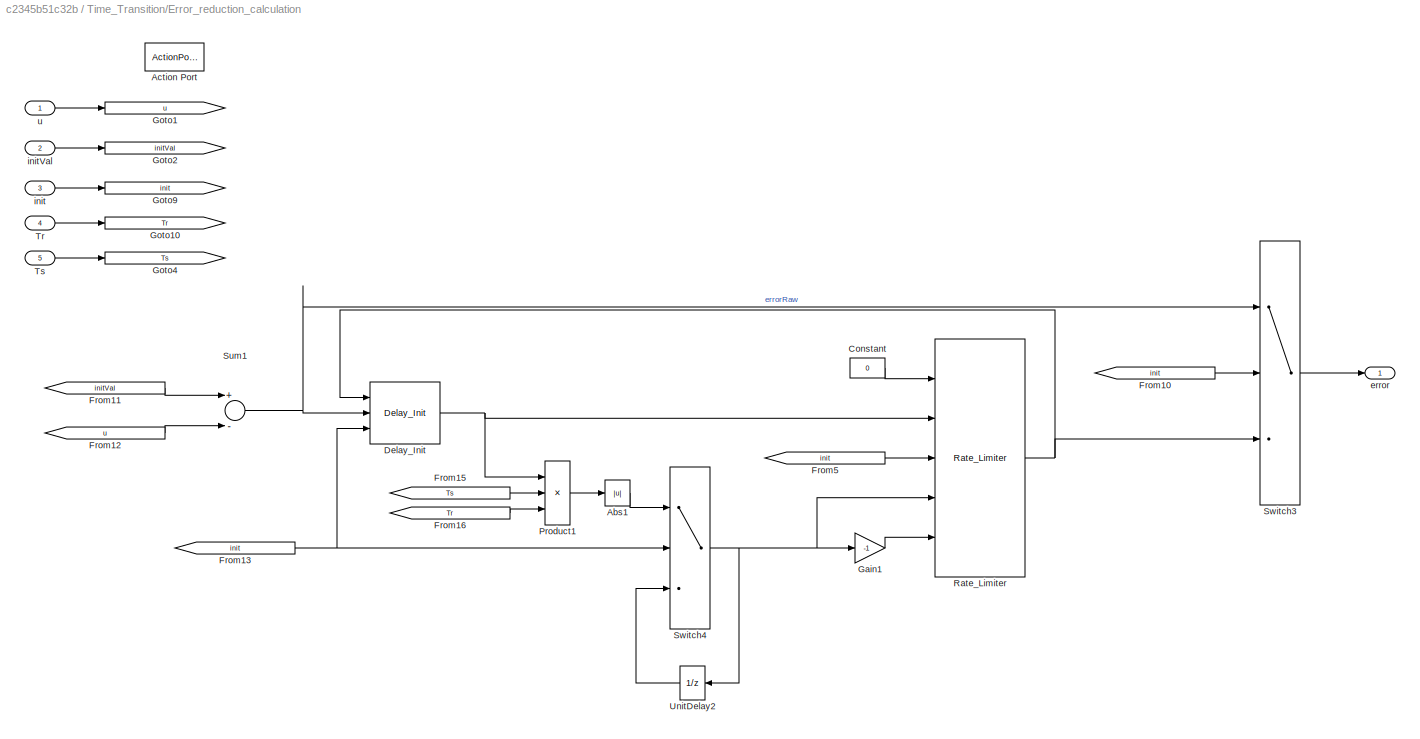
BLOCK [SubSystem] Time_Transition/Error_reduction_calculation
  Ports = [5, 1, 0, 0, 0, 0, 0, 1]
  RequestExecContextInheritance = off
  TreatAsAtomicUnit = on
  Variant = off
BLOCK [Abs] Time_Transition/Error_reduction_calculation/Abs1
  RndMeth = Zero
BLOCK [ActionPort] Time_Transition/Error_reduction_calculation/Action Port
  InitializeStates = reset
BLOCK [Constant] Time_Transition/Error_reduction_calculation/Constant
  OutDataTypeStr = Inherit: Inherit via back propagation
  Value = 0
BLOCK [Reference] Time_Transition/Error_reduction_calculation/Delay_Init  REF=BLDC_controller_Lib/Delay_Init
  AttributesFormatString = Ini=%<initVal>
  Ports = [3, 1]
  SourceBlock = BLDC_controller_Lib/Delay_Init
BLOCK [From] Time_Transition/Error_reduction_calculation/From10
  GotoTag = init
BLOCK [From] Time_Transition/Error_reduction_calculation/From11
  GotoTag = initVal
BLOCK [From] Time_Transition/Error_reduction_calculation/From12
  GotoTag = u
BLOCK [From] Time_Transition/Error_reduction_calculation/From13
  GotoTag = init
BLOCK [From] Time_Transition/Error_reduction_calculation/From15
  GotoTag = Ts
BLOCK [From] Time_Transition/Error_reduction_calculation/From16
  GotoTag = Tr
BLOCK [From] Time_Transition/Error_reduction_calculation/From5
  GotoTag = init
BLOCK [Gain] Time_Transition/Error_reduction_calculation/Gain1
  Gain = -1
  ParamDataTypeStr = Inherit: Inherit via internal rule
  RndMeth = Zero
  SaturateOnIntegerOverflow = off
BLOCK [Goto] Time_Transition/Error_reduction_calculation/Goto1
  GotoTag = u
BLOCK [Goto] Time_Transition/Error_reduction_calculation/Goto10
  GotoTag = Tr
BLOCK [Goto] Time_Transition/Error_reduction_calculation/Goto2
  GotoTag = initVal
BLOCK [Goto] Time_Transition/Error_reduction_calculation/Goto4
  GotoTag = Ts
BLOCK [Goto] Time_Transition/Error_reduction_calculation/Goto9
  GotoTag = init
BLOCK [Product] Time_Transition/Error_reduction_calculation/Product1
  InputSameDT = off
  Inputs = **/
  OutDataTypeStr = Inherit: Inherit via internal rule
  Ports = [3, 1]
  Tag = struct('comment',struct('text','','placement',1),'logdata',struct('maxnumvals',inf,'plotchannels',[],'loggingmode',3,'channels',1),'output',struct('variable','','description','','name','$S_$B','width',1,'address','','max',NaN,'min',NaN,'class','default','type','CONTINUOUS','scaling','','lsb',1,'offset',0,'arb',0,'freeze',1,'unit','','autoscalingmode',1,'lowerheadroom',1,'upperheadroom',1,'headroom...<+147ch>
BLOCK [Reference] Time_Transition/Error_reduction_calculation/Rate_Limiter  REF=BLDC_controller_Lib/Rate_Limiter
  Ports = [5, 1]
  SourceBlock = BLDC_controller_Lib/Rate_Limiter
BLOCK [Sum] Time_Transition/Error_reduction_calculation/Sum1
  InputSameDT = off
  Inputs = +-
  Ports = [2, 1]
  RndMeth = Zero
  SaturateOnIntegerOverflow = off
BLOCK [Switch] Time_Transition/Error_reduction_calculation/Switch3
  AttributesFormatString = Criteria=%<Criteria>
  Criteria = u2 ~= 0
  OutDataTypeStr = Inherit: Inherit via back propagation
  RndMeth = Simplest
  SaturateOnIntegerOverflow = off
BLOCK [Switch] Time_Transition/Error_reduction_calculation/Switch4
  AttributesFormatString = Criteria=%<Criteria>
  Criteria = u2 ~= 0
  OutDataTypeStr = Inherit: Inherit via back propagation
  RndMeth = Simplest
  SaturateOnIntegerOverflow = off
BLOCK [Inport] Time_Transition/Error_reduction_calculation/Tr
  IconDisplay = Port number
  Port = 4
BLOCK [Inport] Time_Transition/Error_reduction_calculation/Ts
  IconDisplay = Port number
  Port = 5
BLOCK [UnitDelay] Time_Transition/Error_reduction_calculation/UnitDelay2
  AttributesFormatString = Ini=%<X0>
  SampleTime = -1
BLOCK [Outport] Time_Transition/Error_reduction_calculation/error
  IconDisplay = Port number
  InitialOutput = 0
  OutputWhenDisabled = reset
BLOCK [Inport] Time_Transition/Error_reduction_calculation/init
  IconDisplay = Port number
  Port = 3
BLOCK [Inport] Time_Transition/Error_reduction_calculation/initVal
  IconDisplay = Port number
  Port = 2
BLOCK [Inport] Time_Transition/Error_reduction_calculation/u
  IconDisplay = Port number
BLOCK [From] Time_Transition/From
  GotoTag = u
BLOCK [From] Time_Transition/From1
  GotoTag = init
BLOCK [From] Time_Transition/From2
  GotoTag = u
BLOCK [From] Time_Transition/From3
  GotoTag = Tr
BLOCK [From] Time_Transition/From4
  GotoTag = Ts
BLOCK [From] Time_Transition/From6
  GotoTag = init
BLOCK [From] Time_Transition/From8
  GotoTag = initVal
BLOCK [Goto] Time_Transition/Goto
  GotoTag = u
BLOCK [Goto] Time_Transition/Goto1
  GotoTag = initVal
BLOCK [Goto] Time_Transition/Goto2
  GotoTag = init
BLOCK [Goto] Time_Transition/Goto3
  GotoTag = Tr
BLOCK [Goto] Time_Transition/Goto4
  GotoTag = Ts
BLOCK [If] Time_Transition/If
  IfExpression = u1 ~= 0
  Ports = [1, 1]
  ShowElse = off
BLOCK [Logic] Time_Transition/Logical Operator
  Operator = OR
  OutDataTypeStr = boolean
  Ports = [2, 1]
BLOCK [RelationalOperator] Time_Transition/Relational Operator
  Operator = <=
  OutDataTypeStr = boolean
  Ports = [2, 1]
BLOCK [Sum] Time_Transition/Sum
  InputSameDT = off
  Ports = [2, 1]
  RndMeth = Zero
BLOCK [Inport] Time_Transition/Tr
  IconDisplay = Port number
  Port = 4
BLOCK [Inport] Time_Transition/Ts
  IconDisplay = Port number
  Port = 5
BLOCK [UnitDelay] Time_Transition/UnitDelay2
  AttributesFormatString = Ini=%<X0>
  SampleTime = -1
BLOCK [Constant] Time_Transition/eps
  OutDataTypeStr = Inherit: Inherit via back propagation
  Value = eps
BLOCK [Inport] Time_Transition/init
  IconDisplay = Port number
  Port = 3
BLOCK [Inport] Time_Transition/initVal
  IconDisplay = Port number
  Port = 2
BLOCK [Inport] Time_Transition/u
  IconDisplay = Port number
BLOCK [Outport] Time_Transition/y
  IconDisplay = Port number
BLOCK [SubSystem] either_edge
  Ports = [1, 1]
  RequestExecContextInheritance = off
  StopFcn = %tagged
  TreatAsAtomicUnit = on
  UserDataPersistent = on
  Variant = off
BLOCK [RelationalOperator] either_edge/Relational Operator
  Operator = ~=
  OutDataTypeStr = boolean
  Ports = [2, 1]
BLOCK [UnitDelay] either_edge/UnitDelay
  AttributesFormatString = Ini=%<X0>
  SampleTime = -1
BLOCK [Inport] either_edge/u
  IconDisplay = Port number
BLOCK [Outport] either_edge/y
  IconDisplay = Port number
BLOCK [SubSystem] falling_edge1
  Ports = [1, 1]
  RequestExecContextInheritance = off
  StopFcn = %tagged
  TreatAsAtomicUnit = on
  UserDataPersistent = on
  Variant = off
BLOCK [Logic] falling_edge1/Logical Operator
  OutDataTypeStr = boolean
  Ports = [2, 1]
  Tag = struct('inputs','2','comment',struct('text','','placement',1),'logdata',struct('maxnumvals',inf,'plotchannels',[],'loggingmode',3,'channels',1),'operator','AND','output',struct('variable','','description','','name','$S_$B','address','','class','default','type','Bool','unit',''),'scalingvalid',0,'date',733067.68453166669)
BLOCK [Logic] falling_edge1/Logical Operator1
  Inputs = 1
  Operator = NOT
  OutDataTypeStr = boolean
  Ports = [1, 1]
  Tag = struct('inputs','1','comment',struct('text','','placement',1),'logdata',struct('maxnumvals',inf,'plotchannels',[],'loggingmode',3,'channels',1),'operator','NOT','output',struct('variable','','description','','name','$S_$B','address','','class','default','type','Bool','unit',''),'scalingvalid',0,'date',733067.68453201384)
BLOCK [UnitDelay] falling_edge1/UnitDelay
  AttributesFormatString = Ini=%<X0>
  SampleTime = -1
BLOCK [Inport] falling_edge1/u
  IconDisplay = Port number
BLOCK [Outport] falling_edge1/y
  IconDisplay = Port number
BLOCK [SubSystem] rising_edge
  Ports = [1, 1]
  RequestExecContextInheritance = off
  StopFcn = %tagged
  TreatAsAtomicUnit = on
  UserDataPersistent = on
  Variant = off
BLOCK [Logic] rising_edge/Logical Operator
  OutDataTypeStr = boolean
  Ports = [2, 1]
  Tag = struct('inputs','2','comment',struct('text','','placement',1),'logdata',struct('maxnumvals',inf,'plotchannels',[],'loggingmode',3,'channels',1),'operator','AND','output',struct('variable','','description','','name','$S_$B','address','','class','default','type','Bool','unit',''),'scalingvalid',0,'date',733067.68458487268)
BLOCK [Logic] rising_edge/Logical Operator1
  Inputs = 1
  Operator = NOT
  OutDataTypeStr = boolean
  Ports = [1, 1]
  Tag = struct('inputs','1','comment',struct('text','','placement',1),'logdata',struct('maxnumvals',inf,'plotchannels',[],'loggingmode',3,'channels',1),'operator','NOT','output',struct('variable','','description','','name','$S_$B','address','','class','default','type','Bool','unit',''),'scalingvalid',0,'date',733067.68458533566)
BLOCK [UnitDelay] rising_edge/UnitDelay
  AttributesFormatString = Ini=%<X0>
  InputProcessing = Elements as channels (sample based)
  SampleTime = -1
BLOCK [Inport] rising_edge/u
  IconDisplay = Port number
BLOCK [Outport] rising_edge/y
  IconDisplay = Port number
BLOCK [SubSystem] rising_edge_init
  Ports = [0, 1]
  RequestExecContextInheritance = off
  StopFcn = %tagged
  TreatAsAtomicUnit = on
  UserDataPersistent = on
  Variant = off
BLOCK [Constant] rising_edge_init/Constant
  OutDataTypeStr = boolean
  Value = 0
BLOCK [UnitDelay] rising_edge_init/UnitDelay
  AttributesFormatString = Ini=%<X0>
  InitialCondition = 1
  SampleTime = -1
BLOCK [Outport] rising_edge_init/y
  IconDisplay = Port number
BLOCK [SubSystem] rst_Delay
  AttributesFormatString = Ini=%<InitVal>
  Ports = [2, 1]
  RequestExecContextInheritance = off
  Variant = off
BLOCK [Constant] rst_Delay/Constant23
  OutDataTypeStr = Inherit: Inherit via back propagation
  Value = 0
BLOCK [Switch] rst_Delay/Switch1
  Criteria = u2 ~= 0
  InputSameDT = off
  OutDataTypeStr = Inherit: Inherit via back propagation
  RndMeth = Simplest
  SaturateOnIntegerOverflow = off
BLOCK [UnitDelay] rst_Delay/UnitDelay
  AttributesFormatString = Ini=%<X0>
  InitialCondition = initVal
  SampleTime = -1
BLOCK [Inport] rst_Delay/rst
  IconDisplay = Port number
  Port = 2
BLOCK [Inport] rst_Delay/u
  IconDisplay = Port number
BLOCK [Outport] rst_Delay/y
  IconDisplay = Port number
BLOCK [SubSystem] rst_DelayLim
  AttributesFormatString = Ini=%<z_cntMaxLim>
  Ports = [2, 1]
  RequestExecContextInheritance = off
  Variant = off
BLOCK [Constant] rst_DelayLim/Constant1
  OutDataTypeStr = Inherit: Inherit via back propagation
  Value = z_cntMaxLim
BLOCK [Constant] rst_DelayLim/Constant23
  OutDataTypeStr = Inherit: Inherit via back propagation
  Value = 0
BLOCK [RelationalOperator] rst_DelayLim/Relational Operator1
  InputSameDT = off
  Operator = <
  OutDataTypeStr = boolean
  Ports = [2, 1]
  RndMeth = Simplest
BLOCK [Switch] rst_DelayLim/Switch1
  Criteria = u2 ~= 0
  InputSameDT = off
  OutDataTypeStr = Inherit: Inherit via back propagation
  RndMeth = Simplest
  SaturateOnIntegerOverflow = off
BLOCK [Switch] rst_DelayLim/Switch2
  Criteria = u2 ~= 0
  InputSameDT = off
  OutDataTypeStr = Inherit: Inherit via back propagation
  RndMeth = Simplest
  SaturateOnIntegerOverflow = off
BLOCK [UnitDelay] rst_DelayLim/UnitDelay
  AttributesFormatString = Ini=%<X0>
  InitialCondition = z_cntMaxLim
  SampleTime = -1
BLOCK [Inport] rst_DelayLim/rst
  IconDisplay = Port number
  Port = 2
BLOCK [Inport] rst_DelayLim/u
  IconDisplay = Port number
BLOCK [Outport] rst_DelayLim/y
  IconDisplay = Port number
ANNOTATION (root): CUSTOM LIBRARY
ANNOTATION Debounce_Filter/Default: Hold the previous value
ANNOTATION Modulo_fixdt: Modulo implementation: rem = num - div*(num/div) Note : Division and multiplier has the setting 'Floor'
ANNOTATION Rate_Limiter: Rate Limiter Note: The sample time must be included in the Increment and Decrement values.
ANNOTATION Rate_Limiter_hit: Rate Limiter Note: The sample time must be included in the Increment and Decrement values.
LINE Counter/MinMax:1 -> Counter/rst_Delay:1
NET Counter/Sum1:1 -> Counter/MinMax:1, Counter/cnt:1
LINE Counter/inc:1 -> Counter/Sum1:1
LINE Counter/max:1 -> Counter/MinMax:2
LINE Counter/rst:1 -> Counter/rst_Delay:2
LINE Counter/rst_Delay:1 -> Counter/Sum1:2
LINE Debounce_Filter/Default/yPrev:1 -> Debounce_Filter/Default/yDefault:1
LINE Debounce_Filter/Default:1 -> Debounce_Filter/Merge:3
LINE Debounce_Filter/Dequalification/Constant1:1 -> Debounce_Filter/Dequalification/Switch2:1
LINE Debounce_Filter/Dequalification/Constant6:1 -> Debounce_Filter/Dequalification/Counter:1
LINE Debounce_Filter/Dequalification/Counter:1 -> Debounce_Filter/Dequalification/Relational Operator2:1
LINE Debounce_Filter/Dequalification/From10:1 -> Debounce_Filter/Dequalification/Relational Operator2:2
LINE Debounce_Filter/Dequalification/From1:1 -> Debounce_Filter/Dequalification/Switch2:3
LINE Debounce_Filter/Dequalification/From2:1 -> Debounce_Filter/Dequalification/yDeacv:1
LINE Debounce_Filter/Dequalification/From7:1 -> Debounce_Filter/Dequalification/Counter:2
LINE Debounce_Filter/Dequalification/From8:1 -> Debounce_Filter/Dequalification/Counter:3
LINE Debounce_Filter/Dequalification/Relational Operator2:1 -> Debounce_Filter/Dequalification/Switch2:2
LINE Debounce_Filter/Dequalification/Switch2:1 -> Debounce_Filter/Dequalification/Goto1:1
LINE Debounce_Filter/Dequalification/b_cntRst:1 -> Debounce_Filter/Dequalification/Goto2:1
LINE Debounce_Filter/Dequalification/tDeacv:1 -> Debounce_Filter/Dequalification/Goto:1
LINE Debounce_Filter/Dequalification/yPrev:1 -> Debounce_Filter/Dequalification/Goto17:1
LINE Debounce_Filter/Dequalification:1 -> Debounce_Filter/Merge:2
LINE Debounce_Filter/From10:1 -> Debounce_Filter/Dequalification:2
LINE Debounce_Filter/From11:1 -> Debounce_Filter/Qualification:3
LINE Debounce_Filter/From12:1 -> Debounce_Filter/Dequalification:1
LINE Debounce_Filter/From1:1 -> Debounce_Filter/Qualification:1
LINE Debounce_Filter/From2:1 -> Debounce_Filter/Logical Operator2:1
LINE Debounce_Filter/From3:1 -> Debounce_Filter/Logical Operator4:1
LINE Debounce_Filter/From4:1 -> Debounce_Filter/Logical Operator3:2
LINE Debounce_Filter/From5:1 -> Debounce_Filter/either_edge:1
LINE Debounce_Filter/From6:1 -> Debounce_Filter/y:1
LINE Debounce_Filter/From7:1 -> Debounce_Filter/Default:1
LINE Debounce_Filter/From8:1 -> Debounce_Filter/Qualification:2
LINE Debounce_Filter/From9:1 -> Debounce_Filter/Dequalification:3
LINE Debounce_Filter/From:1 -> Debounce_Filter/Logical Operator1:1
LINE Debounce_Filter/If2:1 -> Debounce_Filter/Qualification:ifaction
LINE Debounce_Filter/If2:2 -> Debounce_Filter/Dequalification:ifaction
LINE Debounce_Filter/If2:3 -> Debounce_Filter/Default:ifaction
LINE Debounce_Filter/Logical Operator1:1 -> Debounce_Filter/Logical Operator2:2
LINE Debounce_Filter/Logical Operator2:1 -> Debounce_Filter/If2:1
LINE Debounce_Filter/Logical Operator3:1 -> Debounce_Filter/If2:2
LINE Debounce_Filter/Logical Operator4:1 -> Debounce_Filter/Logical Operator3:1
NET Debounce_Filter/Merge:1 -> Debounce_Filter/Goto1:1, Debounce_Filter/UnitDelay:1
LINE Debounce_Filter/Qualification/Constant1:1 -> Debounce_Filter/Qualification/Switch2:1
LINE Debounce_Filter/Qualification/Constant6:1 -> Debounce_Filter/Qualification/Counter:1
LINE Debounce_Filter/Qualification/Counter:1 -> Debounce_Filter/Qualification/Relational Operator2:1
LINE Debounce_Filter/Qualification/From10:1 -> Debounce_Filter/Qualification/Relational Operator2:2
LINE Debounce_Filter/Qualification/From1:1 -> Debounce_Filter/Qualification/Switch2:3
LINE Debounce_Filter/Qualification/From2:1 -> Debounce_Filter/Qualification/yAcv:1
LINE Debounce_Filter/Qualification/From7:1 -> Debounce_Filter/Qualification/Counter:2
LINE Debounce_Filter/Qualification/From8:1 -> Debounce_Filter/Qualification/Counter:3
LINE Debounce_Filter/Qualification/Relational Operator2:1 -> Debounce_Filter/Qualification/Switch2:2
LINE Debounce_Filter/Qualification/Switch2:1 -> Debounce_Filter/Qualification/Goto1:1
LINE Debounce_Filter/Qualification/b_cntRst:1 -> Debounce_Filter/Qualification/Goto2:1
LINE Debounce_Filter/Qualification/b_errPrev:1 -> Debounce_Filter/Qualification/Goto17:1
LINE Debounce_Filter/Qualification/tAcv:1 -> Debounce_Filter/Qualification/Goto:1
LINE Debounce_Filter/Qualification:1 -> Debounce_Filter/Merge:1
LINE Debounce_Filter/UnitDelay:1 -> Debounce_Filter/Goto3:1
LINE Debounce_Filter/either_edge:1 -> Debounce_Filter/Goto:1
LINE Debounce_Filter/tAcv:1 -> Debounce_Filter/Goto4:1
LINE Debounce_Filter/tDeacv:1 -> Debounce_Filter/Goto5:1
LINE Debounce_Filter/u:1 -> Debounce_Filter/Goto2:1
LINE Delay_Init/Switch1:1 -> Delay_Init/y:1
LINE Delay_Init/Switch2:1 -> Delay_Init/UnitDelay:1
LINE Delay_Init/UnitDelay:1 -> Delay_Init/Switch1:3
NET Delay_Init/init:1 -> Delay_Init/Switch1:2, Delay_Init/Switch2:2
NET Delay_Init/initVal:1 -> Delay_Init/Switch1:1, Delay_Init/Switch2:1
LINE Delay_Init/u:1 -> Delay_Init/Switch2:3
LINE I_backCalc_fixdt/Divide1:1 -> I_backCalc_fixdt/UnitDelay:1
LINE I_backCalc_fixdt/Divide2:1 -> I_backCalc_fixdt/Sum2:1
LINE I_backCalc_fixdt/I:1 -> I_backCalc_fixdt/Divide2:2
LINE I_backCalc_fixdt/Integrator/Data Type Conversion1:1 -> I_backCalc_fixdt/Integrator/y:1
NET I_backCalc_fixdt/Integrator/Sum1:1 -> I_backCalc_fixdt/Integrator/Data Type Conversion1:1, I_backCalc_fixdt/Integrator/UnitDelay:1
LINE I_backCalc_fixdt/Integrator/UnitDelay:1 -> I_backCalc_fixdt/Integrator/Sum1:2
LINE I_backCalc_fixdt/Integrator/u:1 -> I_backCalc_fixdt/Integrator/Sum1:1
NET I_backCalc_fixdt/Integrator:1 -> I_backCalc_fixdt/Saturation Dynamic1:2, I_backCalc_fixdt/Sum3:1
LINE I_backCalc_fixdt/Kb:1 -> I_backCalc_fixdt/Divide1:2
NET I_backCalc_fixdt/Saturation Dynamic1:1 -> I_backCalc_fixdt/Sum3:2, I_backCalc_fixdt/out:1
LINE I_backCalc_fixdt/Sum2:1 -> I_backCalc_fixdt/Integrator:1
LINE I_backCalc_fixdt/Sum3:1 -> I_backCalc_fixdt/Divide1:1
LINE I_backCalc_fixdt/UnitDelay:1 -> I_backCalc_fixdt/Sum2:2
LINE I_backCalc_fixdt/err:1 -> I_backCalc_fixdt/Divide2:1
LINE I_backCalc_fixdt/satMax:1 -> I_backCalc_fixdt/Saturation Dynamic1:1
LINE I_backCalc_fixdt/satMin:1 -> I_backCalc_fixdt/Saturation Dynamic1:3
LINE Low_Pass_Filter/Data Type Conversion:1 -> Low_Pass_Filter/y:1
LINE Low_Pass_Filter/Divide3:1 -> Low_Pass_Filter/Sum3:1
LINE Low_Pass_Filter/Sum2:1 -> Low_Pass_Filter/Divide3:2
NET Low_Pass_Filter/Sum3:1 -> Low_Pass_Filter/Data Type Conversion:1, Low_Pass_Filter/UnitDelay1:1
NET Low_Pass_Filter/UnitDelay1:1 -> Low_Pass_Filter/Sum2:2, Low_Pass_Filter/Sum3:2
LINE Low_Pass_Filter/coef:1 -> Low_Pass_Filter/Divide3:1
LINE Low_Pass_Filter/u:1 -> Low_Pass_Filter/Sum2:1
LINE Modulo_fixdt/Divide2:1 -> Modulo_fixdt/Divide3:2
LINE Modulo_fixdt/Divide3:1 -> Modulo_fixdt/Sum3:2
LINE Modulo_fixdt/Sum3:1 -> Modulo_fixdt/rem:1
NET Modulo_fixdt/div:1 -> Modulo_fixdt/Divide2:2, Modulo_fixdt/Divide3:1
NET Modulo_fixdt/num:1 -> Modulo_fixdt/Divide2:1, Modulo_fixdt/Sum3:1
LINE PI_backCalc/Divide1:1 -> PI_backCalc/Sum1:1
LINE PI_backCalc/Divide2:1 -> PI_backCalc/UnitDelay:1
LINE PI_backCalc/Divide4:1 -> PI_backCalc/Sum6:2
LINE PI_backCalc/Ffwd:1 -> PI_backCalc/Sum6:1
LINE PI_backCalc/I:1 -> PI_backCalc/Divide1:2
NET PI_backCalc/Integrator/Sum1:1 -> PI_backCalc/Integrator/UnitDelay:1, PI_backCalc/Integrator/y:1
LINE PI_backCalc/Integrator/UnitDelay:1 -> PI_backCalc/Integrator/Sum1:2
LINE PI_backCalc/Integrator/u:1 -> PI_backCalc/Integrator/Sum1:1
LINE PI_backCalc/Integrator:1 -> PI_backCalc/Sum6:3
LINE PI_backCalc/Kb:1 -> PI_backCalc/Divide2:2
LINE PI_backCalc/P:1 -> PI_backCalc/Divide4:2
NET PI_backCalc/Saturation Dynamic1:1 -> PI_backCalc/Sum3:2, PI_backCalc/out:1
LINE PI_backCalc/Sum1:1 -> PI_backCalc/Integrator:1
LINE PI_backCalc/Sum3:1 -> PI_backCalc/Divide2:1
NET PI_backCalc/Sum6:1 -> PI_backCalc/Saturation Dynamic1:2, PI_backCalc/Sum3:1
LINE PI_backCalc/UnitDelay:1 -> PI_backCalc/Sum1:3
NET PI_backCalc/err:1 -> PI_backCalc/Divide1:1, PI_backCalc/Divide4:1
LINE PI_backCalc/ext_limProt:1 -> PI_backCalc/Sum1:2
LINE PI_backCalc/satMax:1 -> PI_backCalc/Saturation Dynamic1:1
LINE PI_backCalc/satMin:1 -> PI_backCalc/Saturation Dynamic1:3
LINE PI_backCalcTR_fixdt/Divide1:1 -> PI_backCalcTR_fixdt/Sum2:1
LINE PI_backCalcTR_fixdt/Divide2:1 -> PI_backCalcTR_fixdt/UnitDelay:1
LINE PI_backCalcTR_fixdt/Divide3:1 -> PI_backCalcTR_fixdt/UnitDelay1:1
LINE PI_backCalcTR_fixdt/Divide4:1 -> PI_backCalcTR_fixdt/Sum6:2
LINE PI_backCalcTR_fixdt/Ffwd:1 -> PI_backCalcTR_fixdt/Sum6:1
LINE PI_backCalcTR_fixdt/I:1 -> PI_backCalcTR_fixdt/Divide1:2
NET PI_backCalcTR_fixdt/Integrator/Sum1:1 -> PI_backCalcTR_fixdt/Integrator/UnitDelay:1, PI_backCalcTR_fixdt/Integrator/y:1
LINE PI_backCalcTR_fixdt/Integrator/UnitDelay:1 -> PI_backCalcTR_fixdt/Integrator/Sum1:2
LINE PI_backCalcTR_fixdt/Integrator/u:1 -> PI_backCalcTR_fixdt/Integrator/Sum1:1
LINE PI_backCalcTR_fixdt/Integrator:1 -> PI_backCalcTR_fixdt/Sum6:3
LINE PI_backCalcTR_fixdt/Kb:1 -> PI_backCalcTR_fixdt/Divide2:2
LINE PI_backCalcTR_fixdt/Kt:1 -> PI_backCalcTR_fixdt/Divide3:2
LINE PI_backCalcTR_fixdt/P:1 -> PI_backCalcTR_fixdt/Divide4:2
NET PI_backCalcTR_fixdt/Saturation Dynamic1:1 -> PI_backCalcTR_fixdt/Sum1:1, PI_backCalcTR_fixdt/Sum3:2, PI_backCalcTR_fixdt/out:1
LINE PI_backCalcTR_fixdt/Sum1:1 -> PI_backCalcTR_fixdt/Divide3:1
LINE PI_backCalcTR_fixdt/Sum2:1 -> PI_backCalcTR_fixdt/Integrator:1
LINE PI_backCalcTR_fixdt/Sum3:1 -> PI_backCalcTR_fixdt/Divide2:1
NET PI_backCalcTR_fixdt/Sum6:1 -> PI_backCalcTR_fixdt/Saturation Dynamic1:2, PI_backCalcTR_fixdt/Sum3:1
LINE PI_backCalcTR_fixdt/TR:1 -> PI_backCalcTR_fixdt/Sum1:2
LINE PI_backCalcTR_fixdt/UnitDelay1:1 -> PI_backCalcTR_fixdt/Sum2:2
LINE PI_backCalcTR_fixdt/UnitDelay:1 -> PI_backCalcTR_fixdt/Sum2:3
NET PI_backCalcTR_fixdt/err:1 -> PI_backCalcTR_fixdt/Divide1:1, PI_backCalcTR_fixdt/Divide4:1
LINE PI_backCalcTR_fixdt/satMax:1 -> PI_backCalcTR_fixdt/Saturation Dynamic1:1
LINE PI_backCalcTR_fixdt/satMin:1 -> PI_backCalcTR_fixdt/Saturation Dynamic1:3
LINE PI_backCalc_fixdt/Divide1:1 -> PI_backCalc_fixdt/Sum2:1
LINE PI_backCalc_fixdt/Divide2:1 -> PI_backCalc_fixdt/UnitDelay:1
LINE PI_backCalc_fixdt/Divide4:1 -> PI_backCalc_fixdt/Sum6:1
LINE PI_backCalc_fixdt/I:1 -> PI_backCalc_fixdt/Divide1:2
LINE PI_backCalc_fixdt/Integrator/Data Type Conversion1:1 -> PI_backCalc_fixdt/Integrator/y:1
NET PI_backCalc_fixdt/Integrator/Sum1:1 -> PI_backCalc_fixdt/Integrator/Data Type Conversion1:1, PI_backCalc_fixdt/Integrator/UnitDelay:1
LINE PI_backCalc_fixdt/Integrator/UnitDelay:1 -> PI_backCalc_fixdt/Integrator/Sum1:2
LINE PI_backCalc_fixdt/Integrator/u:1 -> PI_backCalc_fixdt/Integrator/Sum1:1
LINE PI_backCalc_fixdt/Integrator:1 -> PI_backCalc_fixdt/Sum6:2
LINE PI_backCalc_fixdt/Kb:1 -> PI_backCalc_fixdt/Divide2:2
LINE PI_backCalc_fixdt/P:1 -> PI_backCalc_fixdt/Divide4:2
NET PI_backCalc_fixdt/Saturation Dynamic1:1 -> PI_backCalc_fixdt/Sum3:2, PI_backCalc_fixdt/out:1
LINE PI_backCalc_fixdt/Sum2:1 -> PI_backCalc_fixdt/Integrator:1
LINE PI_backCalc_fixdt/Sum3:1 -> PI_backCalc_fixdt/Divide2:1
NET PI_backCalc_fixdt/Sum6:1 -> PI_backCalc_fixdt/Saturation Dynamic1:2, PI_backCalc_fixdt/Sum3:1
LINE PI_backCalc_fixdt/UnitDelay:1 -> PI_backCalc_fixdt/Sum2:3
NET PI_backCalc_fixdt/err:1 -> PI_backCalc_fixdt/Divide1:1, PI_backCalc_fixdt/Divide4:1
LINE PI_backCalc_fixdt/ext_limProt:1 -> PI_backCalc_fixdt/Sum2:2
LINE PI_backCalc_fixdt/satMax:1 -> PI_backCalc_fixdt/Saturation Dynamic1:1
LINE PI_backCalc_fixdt/satMin:1 -> PI_backCalc_fixdt/Saturation Dynamic1:3
LINE PI_clamp/Clamping circuit/AND:1 -> PI_clamp/Clamping circuit/Clamp:1
LINE PI_clamp/Clamping circuit/DataTypeConv1:1 -> PI_clamp/Clamping circuit/Equal:1
LINE PI_clamp/Clamping circuit/DataTypeConv2:1 -> PI_clamp/Clamping circuit/Equal:2
NET PI_clamp/Clamping circuit/Dead Zone Dynamic:1 -> PI_clamp/Clamping circuit/NotEqual:2, PI_clamp/Clamping circuit/SignDeltaU:1
LINE PI_clamp/Clamping circuit/Equal:1 -> PI_clamp/Clamping circuit/AND:2
LINE PI_clamp/Clamping circuit/NotEqual:1 -> PI_clamp/Clamping circuit/AND:1
LINE PI_clamp/Clamping circuit/SignDeltaU1:1 -> PI_clamp/Clamping circuit/DataTypeConv2:1
LINE PI_clamp/Clamping circuit/SignDeltaU:1 -> PI_clamp/Clamping circuit/DataTypeConv1:1
LINE PI_clamp/Clamping circuit/a_elecPeriod10:1 -> PI_clamp/Clamping circuit/NotEqual:1
LINE PI_clamp/Clamping circuit/preIntegrator:1 -> PI_clamp/Clamping circuit/SignDeltaU1:1
LINE PI_clamp/Clamping circuit/preSat:1 -> PI_clamp/Clamping circuit/Dead Zone Dynamic:2
LINE PI_clamp/Clamping circuit/satMax:1 -> PI_clamp/Clamping circuit/Dead Zone Dynamic:1
LINE PI_clamp/Clamping circuit/satMin:1 -> PI_clamp/Clamping circuit/Dead Zone Dynamic:3
LINE PI_clamp/Clamping circuit:1 -> PI_clamp/UnitDelay:1
NET PI_clamp/Divide1:1 -> PI_clamp/Clamping circuit:1, PI_clamp/Switch3:3
LINE PI_clamp/Divide4:1 -> PI_clamp/Sum6:1
LINE PI_clamp/I:1 -> PI_clamp/Divide1:2
LINE PI_clamp/Integrator/Divide2:1 -> PI_clamp/Integrator/Sum1:1
NET PI_clamp/Integrator/Sum1:1 -> PI_clamp/Integrator/UnitDelay:1, PI_clamp/Integrator/y:1
LINE PI_clamp/Integrator/Ts:1 -> PI_clamp/Integrator/Divide2:2
LINE PI_clamp/Integrator/UnitDelay:1 -> PI_clamp/Integrator/Sum1:2
LINE PI_clamp/Integrator/u:1 -> PI_clamp/Integrator/Divide2:1
LINE PI_clamp/Integrator:1 -> PI_clamp/Sum6:2
LINE PI_clamp/P:1 -> PI_clamp/Divide4:2
LINE PI_clamp/Saturation Dynamic1:1 -> PI_clamp/out:1
NET PI_clamp/Sum6:1 -> PI_clamp/Clamping circuit:2, PI_clamp/Saturation Dynamic1:2
LINE PI_clamp/Switch3:1 -> PI_clamp/Integrator:1
LINE PI_clamp/Ts:1 -> PI_clamp/Integrator:2
LINE PI_clamp/UnitDelay:1 -> PI_clamp/Switch3:2
LINE PI_clamp/a_elecPeriod10:1 -> PI_clamp/Switch3:1
NET PI_clamp/err:1 -> PI_clamp/Divide1:1, PI_clamp/Divide4:1
NET PI_clamp/satMax:1 -> PI_clamp/Clamping circuit:3, PI_clamp/Saturation Dynamic1:1
NET PI_clamp/satMin:1 -> PI_clamp/Clamping circuit:4, PI_clamp/Saturation Dynamic1:3
LINE PI_clamp_fixdt/AND1:1 -> PI_clamp_fixdt/Goto4:1
LINE PI_clamp_fixdt/Clamping_circuit/AND1:1 -> PI_clamp_fixdt/Clamping_circuit/Clamp:1
LINE PI_clamp_fixdt/Clamping_circuit/DataTypeConv3:1 -> PI_clamp_fixdt/Clamping_circuit/Equal1:1
LINE PI_clamp_fixdt/Clamping_circuit/DataTypeConv4:1 -> PI_clamp_fixdt/Clamping_circuit/Equal1:2
LINE PI_clamp_fixdt/Clamping_circuit/Equal1:1 -> PI_clamp_fixdt/Clamping_circuit/AND1:1
LINE PI_clamp_fixdt/Clamping_circuit/SignDeltaU2:1 -> PI_clamp_fixdt/Clamping_circuit/DataTypeConv3:1
LINE PI_clamp_fixdt/Clamping_circuit/SignDeltaU3:1 -> PI_clamp_fixdt/Clamping_circuit/DataTypeConv4:1
LINE PI_clamp_fixdt/Clamping_circuit/hitSat:1 -> PI_clamp_fixdt/Clamping_circuit/AND1:2
LINE PI_clamp_fixdt/Clamping_circuit/preIntegrator:1 -> PI_clamp_fixdt/Clamping_circuit/SignDeltaU2:1
LINE PI_clamp_fixdt/Clamping_circuit/preSat:1 -> PI_clamp_fixdt/Clamping_circuit/SignDeltaU3:1
LINE PI_clamp_fixdt/Clamping_circuit:1 -> PI_clamp_fixdt/UnitDelay1:1
LINE PI_clamp_fixdt/Constant:1 -> PI_clamp_fixdt/Switch1:1
LINE PI_clamp_fixdt/Divide2:1 -> PI_clamp_fixdt/Sum2:1
LINE PI_clamp_fixdt/Divide5:1 -> PI_clamp_fixdt/Sum1:1
LINE PI_clamp_fixdt/From1:1 -> PI_clamp_fixdt/AND1:2
LINE PI_clamp_fixdt/From4:1 -> PI_clamp_fixdt/Clamping_circuit:3
LINE PI_clamp_fixdt/From:1 -> PI_clamp_fixdt/AND1:1
LINE PI_clamp_fixdt/I:1 -> PI_clamp_fixdt/Divide2:2
LINE PI_clamp_fixdt/Integrator/Data Type Conversion1:1 -> PI_clamp_fixdt/Integrator/y:1
NET PI_clamp_fixdt/Integrator/Sum1:1 -> PI_clamp_fixdt/Integrator/Data Type Conversion1:1, PI_clamp_fixdt/Integrator/UnitDelay:1
LINE PI_clamp_fixdt/Integrator/UnitDelay:1 -> PI_clamp_fixdt/Integrator/Sum1:2
LINE PI_clamp_fixdt/Integrator/u:1 -> PI_clamp_fixdt/Integrator/Sum1:1
LINE PI_clamp_fixdt/Integrator:1 -> PI_clamp_fixdt/Sum1:2
LINE PI_clamp_fixdt/P:1 -> PI_clamp_fixdt/Divide5:2
LINE PI_clamp_fixdt/Saturation_hit:1 -> PI_clamp_fixdt/Goto6:1
LINE PI_clamp_fixdt/Saturation_hit:2 -> PI_clamp_fixdt/out:1
LINE PI_clamp_fixdt/Saturation_hit:3 -> PI_clamp_fixdt/Goto1:1
NET PI_clamp_fixdt/Sum1:1 -> PI_clamp_fixdt/Clamping_circuit:2, PI_clamp_fixdt/Saturation_hit:2
NET PI_clamp_fixdt/Sum2:1 -> PI_clamp_fixdt/Clamping_circuit:1, PI_clamp_fixdt/Switch1:3
LINE PI_clamp_fixdt/Switch1:1 -> PI_clamp_fixdt/Integrator:1
LINE PI_clamp_fixdt/UnitDelay1:1 -> PI_clamp_fixdt/Switch1:2
NET PI_clamp_fixdt/err:1 -> PI_clamp_fixdt/Divide2:1, PI_clamp_fixdt/Divide5:1
LINE PI_clamp_fixdt/ext_limProt:1 -> PI_clamp_fixdt/Sum2:2
LINE PI_clamp_fixdt/satMax:1 -> PI_clamp_fixdt/Saturation_hit:1
LINE PI_clamp_fixdt/satMin:1 -> PI_clamp_fixdt/Saturation_hit:3
LINE PI_clamp_fixdt_temp/Clamping circuit/AND:1 -> PI_clamp_fixdt_temp/Clamping circuit/Clamp:1
LINE PI_clamp_fixdt_temp/Clamping circuit/DataTypeConv1:1 -> PI_clamp_fixdt_temp/Clamping circuit/Equal:1
LINE PI_clamp_fixdt_temp/Clamping circuit/DataTypeConv2:1 -> PI_clamp_fixdt_temp/Clamping circuit/Equal:2
NET PI_clamp_fixdt_temp/Clamping circuit/Dead Zone Dynamic:1 -> PI_clamp_fixdt_temp/Clamping circuit/NotEqual:2, PI_clamp_fixdt_temp/Clamping circuit/SignDeltaU:1
LINE PI_clamp_fixdt_temp/Clamping circuit/Equal:1 -> PI_clamp_fixdt_temp/Clamping circuit/AND:2
LINE PI_clamp_fixdt_temp/Clamping circuit/NotEqual:1 -> PI_clamp_fixdt_temp/Clamping circuit/AND:1
LINE PI_clamp_fixdt_temp/Clamping circuit/SignDeltaU1:1 -> PI_clamp_fixdt_temp/Clamping circuit/DataTypeConv2:1
LINE PI_clamp_fixdt_temp/Clamping circuit/SignDeltaU:1 -> PI_clamp_fixdt_temp/Clamping circuit/DataTypeConv1:1
LINE PI_clamp_fixdt_temp/Clamping circuit/a_elecPeriod10:1 -> PI_clamp_fixdt_temp/Clamping circuit/NotEqual:1
LINE PI_clamp_fixdt_temp/Clamping circuit/preIntegrator:1 -> PI_clamp_fixdt_temp/Clamping circuit/SignDeltaU1:1
LINE PI_clamp_fixdt_temp/Clamping circuit/preSat:1 -> PI_clamp_fixdt_temp/Clamping circuit/Dead Zone Dynamic:2
LINE PI_clamp_fixdt_temp/Clamping circuit/satMax:1 -> PI_clamp_fixdt_temp/Clamping circuit/Dead Zone Dynamic:1
LINE PI_clamp_fixdt_temp/Clamping circuit/satMin:1 -> PI_clamp_fixdt_temp/Clamping circuit/Dead Zone Dynamic:3
LINE PI_clamp_fixdt_temp/Clamping circuit:1 -> PI_clamp_fixdt_temp/UnitDelay:1
NET PI_clamp_fixdt_temp/Divide1:1 -> PI_clamp_fixdt_temp/Clamping circuit:1, PI_clamp_fixdt_temp/Switch3:3
LINE PI_clamp_fixdt_temp/Divide4:1 -> PI_clamp_fixdt_temp/Sum6:1
LINE PI_clamp_fixdt_temp/I:1 -> PI_clamp_fixdt_temp/Divide1:2
LINE PI_clamp_fixdt_temp/Integrator/Divide2:1 -> PI_clamp_fixdt_temp/Integrator/Sum1:1
NET PI_clamp_fixdt_temp/Integrator/Sum1:1 -> PI_clamp_fixdt_temp/Integrator/UnitDelay:1, PI_clamp_fixdt_temp/Integrator/y:1
LINE PI_clamp_fixdt_temp/Integrator/Ts:1 -> PI_clamp_fixdt_temp/Integrator/Divide2:2
LINE PI_clamp_fixdt_temp/Integrator/UnitDelay:1 -> PI_clamp_fixdt_temp/Integrator/Sum1:2
LINE PI_clamp_fixdt_temp/Integrator/u:1 -> PI_clamp_fixdt_temp/Integrator/Divide2:1
LINE PI_clamp_fixdt_temp/Integrator:1 -> PI_clamp_fixdt_temp/Sum6:2
LINE PI_clamp_fixdt_temp/P:1 -> PI_clamp_fixdt_temp/Divide4:2
LINE PI_clamp_fixdt_temp/Saturation Dynamic1:1 -> PI_clamp_fixdt_temp/out:1
NET PI_clamp_fixdt_temp/Sum6:1 -> PI_clamp_fixdt_temp/Clamping circuit:2, PI_clamp_fixdt_temp/Saturation Dynamic1:2
LINE PI_clamp_fixdt_temp/Switch3:1 -> PI_clamp_fixdt_temp/Integrator:1
LINE PI_clamp_fixdt_temp/Ts:1 -> PI_clamp_fixdt_temp/Integrator:2
LINE PI_clamp_fixdt_temp/UnitDelay:1 -> PI_clamp_fixdt_temp/Switch3:2
LINE PI_clamp_fixdt_temp/a_elecPeriod10:1 -> PI_clamp_fixdt_temp/Switch3:1
NET PI_clamp_fixdt_temp/err:1 -> PI_clamp_fixdt_temp/Divide1:1, PI_clamp_fixdt_temp/Divide4:1
NET PI_clamp_fixdt_temp/satMax:1 -> PI_clamp_fixdt_temp/Clamping circuit:3, PI_clamp_fixdt_temp/Saturation Dynamic1:1
NET PI_clamp_fixdt_temp/satMin:1 -> PI_clamp_fixdt_temp/Clamping circuit:4, PI_clamp_fixdt_temp/Saturation Dynamic1:3
NET Rate_Limiter/Delay_Init1:1 -> Rate_Limiter/Sum1:2, Rate_Limiter/Sum2:2
LINE Rate_Limiter/Saturation Dynamic:1 -> Rate_Limiter/Sum2:1
LINE Rate_Limiter/Sum1:1 -> Rate_Limiter/Saturation Dynamic:2
NET Rate_Limiter/Sum2:1 -> Rate_Limiter/Delay_Init1:1, Rate_Limiter/y:1
LINE Rate_Limiter/dec:1 -> Rate_Limiter/Saturation Dynamic:3
LINE Rate_Limiter/inc:1 -> Rate_Limiter/Saturation Dynamic:1
LINE Rate_Limiter/init:1 -> Rate_Limiter/Delay_Init1:3
LINE Rate_Limiter/initVal:1 -> Rate_Limiter/Delay_Init1:2
LINE Rate_Limiter/u:1 -> Rate_Limiter/Sum1:1
LINE Rate_Limiter_hit/Saturation_hit:1 -> Rate_Limiter_hit/hitGradMax:1
LINE Rate_Limiter_hit/Saturation_hit:2 -> Rate_Limiter_hit/Sum2:1
LINE Rate_Limiter_hit/Saturation_hit:3 -> Rate_Limiter_hit/hitGradMin:1
LINE Rate_Limiter_hit/Sum1:1 -> Rate_Limiter_hit/Saturation_hit:2
NET Rate_Limiter_hit/Sum2:1 -> Rate_Limiter_hit/UnitDelay:1, Rate_Limiter_hit/y:1
NET Rate_Limiter_hit/UnitDelay:1 -> Rate_Limiter_hit/Sum1:2, Rate_Limiter_hit/Sum2:2
LINE Rate_Limiter_hit/dec:1 -> Rate_Limiter_hit/Saturation_hit:3
LINE Rate_Limiter_hit/inc:1 -> Rate_Limiter_hit/Saturation_hit:1
LINE Rate_Limiter_hit/u:1 -> Rate_Limiter_hit/Sum1:1
NET Saturation_hit/LowerRelop1:1 -> Saturation_hit/Switch1:2, Saturation_hit/hitMax:1
LINE Saturation_hit/Switch1:1 -> Saturation_hit/y:1
LINE Saturation_hit/Switch3:1 -> Saturation_hit/Switch1:3
NET Saturation_hit/UpperRelop:1 -> Saturation_hit/Switch3:2, Saturation_hit/hitMin:1
NET Saturation_hit/lo:1 -> Saturation_hit/Switch3:1, Saturation_hit/UpperRelop:2
NET Saturation_hit/u:1 -> Saturation_hit/LowerRelop1:1, Saturation_hit/Switch3:3, Saturation_hit/UpperRelop:1
NET Saturation_hit/up:1 -> Saturation_hit/LowerRelop1:2, Saturation_hit/Switch1:1
LINE Time_Transition/Abs:1 -> Time_Transition/Relational Operator:1
LINE Time_Transition/Error_reduction_calculation/Abs1:1 -> Time_Transition/Error_reduction_calculation/Switch4:1
LINE Time_Transition/Error_reduction_calculation/Constant:1 -> Time_Transition/Error_reduction_calculation/Rate_Limiter:1
NET Time_Transition/Error_reduction_calculation/Delay_Init:1 -> Time_Transition/Error_reduction_calculation/Product1:1, Time_Transition/Error_reduction_calculation/Rate_Limiter:2
LINE Time_Transition/Error_reduction_calculation/From10:1 -> Time_Transition/Error_reduction_calculation/Switch3:2
LINE Time_Transition/Error_reduction_calculation/From11:1 -> Time_Transition/Error_reduction_calculation/Sum1:1
LINE Time_Transition/Error_reduction_calculation/From12:1 -> Time_Transition/Error_reduction_calculation/Sum1:2
NET Time_Transition/Error_reduction_calculation/From13:1 -> Time_Transition/Error_reduction_calculation/Delay_Init:3, Time_Transition/Error_reduction_calculation/Switch4:2
LINE Time_Transition/Error_reduction_calculation/From15:1 -> Time_Transition/Error_reduction_calculation/Product1:2
LINE Time_Transition/Error_reduction_calculation/From16:1 -> Time_Transition/Error_reduction_calculation/Product1:3
LINE Time_Transition/Error_reduction_calculation/From5:1 -> Time_Transition/Error_reduction_calculation/Rate_Limiter:3
LINE Time_Transition/Error_reduction_calculation/Gain1:1 -> Time_Transition/Error_reduction_calculation/Rate_Limiter:5
LINE Time_Transition/Error_reduction_calculation/Product1:1 -> Time_Transition/Error_reduction_calculation/Abs1:1
NET Time_Transition/Error_reduction_calculation/Rate_Limiter:1 -> Time_Transition/Error_reduction_calculation/Delay_Init:1, Time_Transition/Error_reduction_calculation/Switch3:3
NET Time_Transition/Error_reduction_calculation/Sum1:1 -> Time_Transition/Error_reduction_calculation/Delay_Init:2, Time_Transition/Error_reduction_calculation/Switch3:1
LINE Time_Transition/Error_reduction_calculation/Switch3:1 -> Time_Transition/Error_reduction_calculation/error:1
NET Time_Transition/Error_reduction_calculation/Switch4:1 -> Time_Transition/Error_reduction_calculation/Gain1:1, Time_Transition/Error_reduction_calculation/Rate_Limiter:4, Time_Transition/Error_reduction_calculation/UnitDelay2:1
LINE Time_Transition/Error_reduction_calculation/Tr:1 -> Time_Transition/Error_reduction_calculation/Goto10:1
LINE Time_Transition/Error_reduction_calculation/Ts:1 -> Time_Transition/Error_reduction_calculation/Goto4:1
LINE Time_Transition/Error_reduction_calculation/UnitDelay2:1 -> Time_Transition/Error_reduction_calculation/Switch4:3
LINE Time_Transition/Error_reduction_calculation/init:1 -> Time_Transition/Error_reduction_calculation/Goto9:1
LINE Time_Transition/Error_reduction_calculation/initVal:1 -> Time_Transition/Error_reduction_calculation/Goto2:1
LINE Time_Transition/Error_reduction_calculation/u:1 -> Time_Transition/Error_reduction_calculation/Goto1:1
NET Time_Transition/Error_reduction_calculation:1 -> Time_Transition/Sum:2, Time_Transition/UnitDelay2:1
LINE Time_Transition/From1:1 -> Time_Transition/Logical Operator:2
LINE Time_Transition/From2:1 -> Time_Transition/Sum:1
LINE Time_Transition/From3:1 -> Time_Transition/Error_reduction_calculation:4
LINE Time_Transition/From4:1 -> Time_Transition/Error_reduction_calculation:5
LINE Time_Transition/From6:1 -> Time_Transition/Error_reduction_calculation:3
LINE Time_Transition/From8:1 -> Time_Transition/Error_reduction_calculation:2
LINE Time_Transition/From:1 -> Time_Transition/Error_reduction_calculation:1
LINE Time_Transition/If:1 -> Time_Transition/Error_reduction_calculation:ifaction
LINE Time_Transition/Logical Operator:1 -> Time_Transition/If:1
LINE Time_Transition/Relational Operator:1 -> Time_Transition/Logical Operator:1
LINE Time_Transition/Sum:1 -> Time_Transition/y:1
LINE Time_Transition/Tr:1 -> Time_Transition/Goto3:1
LINE Time_Transition/Ts:1 -> Time_Transition/Goto4:1
LINE Time_Transition/UnitDelay2:1 -> Time_Transition/Abs:1
LINE Time_Transition/eps:1 -> Time_Transition/Relational Operator:2
LINE Time_Transition/init:1 -> Time_Transition/Goto2:1
LINE Time_Transition/initVal:1 -> Time_Transition/Goto1:1
LINE Time_Transition/u:1 -> Time_Transition/Goto:1
LINE either_edge/Relational Operator:1 -> either_edge/y:1
LINE either_edge/UnitDelay:1 -> either_edge/Relational Operator:2
NET either_edge/u:1 -> either_edge/Relational Operator:1, either_edge/UnitDelay:1
LINE falling_edge1/Logical Operator1:1 -> falling_edge1/Logical Operator:1
LINE falling_edge1/Logical Operator:1 -> falling_edge1/y:1
LINE falling_edge1/UnitDelay:1 -> falling_edge1/Logical Operator:2
NET falling_edge1/u:1 -> falling_edge1/Logical Operator1:1, falling_edge1/UnitDelay:1
LINE rising_edge/Logical Operator1:1 -> rising_edge/Logical Operator:2
LINE rising_edge/Logical Operator:1 -> rising_edge/y:1
LINE rising_edge/UnitDelay:1 -> rising_edge/Logical Operator1:1
NET rising_edge/u:1 -> rising_edge/Logical Operator:1, rising_edge/UnitDelay:1
LINE rising_edge_init/Constant:1 -> rising_edge_init/UnitDelay:1
LINE rising_edge_init/UnitDelay:1 -> rising_edge_init/y:1
LINE rst_Delay/Constant23:1 -> rst_Delay/Switch1:1
LINE rst_Delay/Switch1:1 -> rst_Delay/y:1
LINE rst_Delay/UnitDelay:1 -> rst_Delay/Switch1:3
LINE rst_Delay/rst:1 -> rst_Delay/Switch1:2
LINE rst_Delay/u:1 -> rst_Delay/UnitDelay:1
NET rst_DelayLim/Constant1:1 -> rst_DelayLim/Relational Operator1:2, rst_DelayLim/Switch2:3
LINE rst_DelayLim/Constant23:1 -> rst_DelayLim/Switch1:1
LINE rst_DelayLim/Relational Operator1:1 -> rst_DelayLim/Switch2:2
LINE rst_DelayLim/Switch1:1 -> rst_DelayLim/y:1
LINE rst_DelayLim/Switch2:1 -> rst_DelayLim/Switch1:3
NET rst_DelayLim/UnitDelay:1 -> rst_DelayLim/Relational Operator1:1, rst_DelayLim/Switch2:1
LINE rst_DelayLim/rst:1 -> rst_DelayLim/Switch1:2
LINE rst_DelayLim/u:1 -> rst_DelayLim/UnitDelay:1
note: NET lines group one-source signal fan-out (src -> all destinations, sorted); 1:1 wires keep LINE
